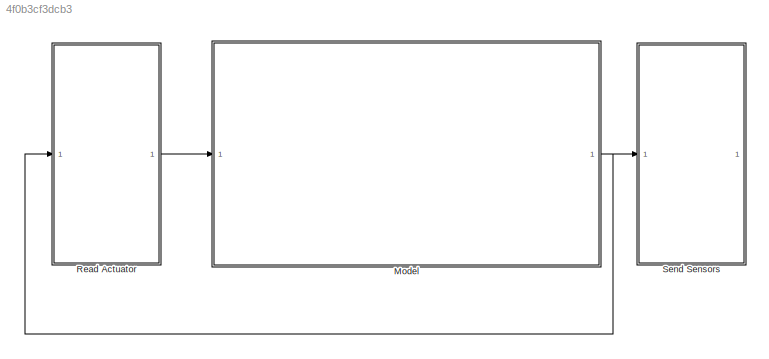
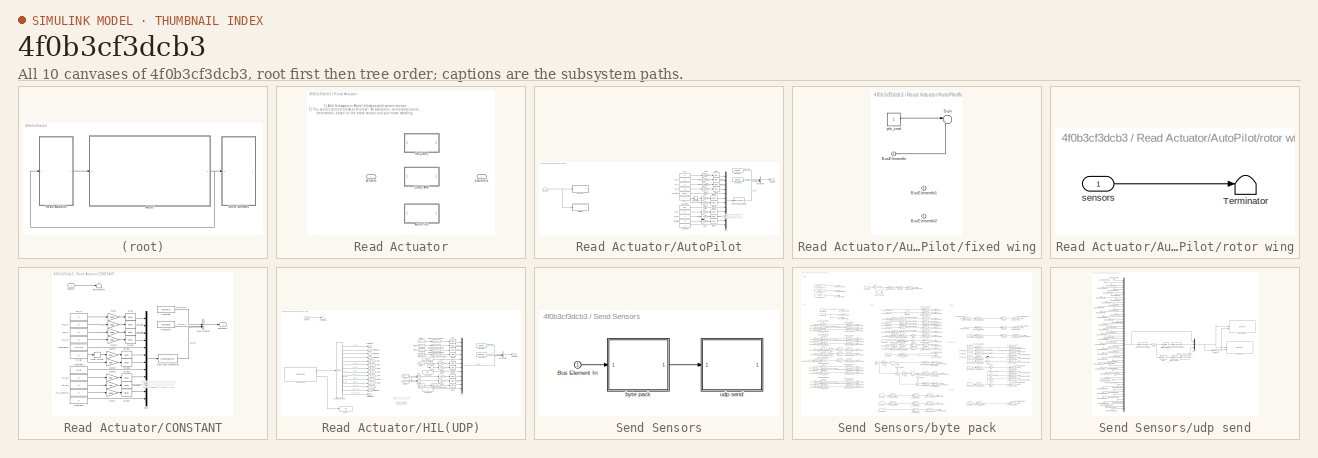
[diagram: thumbnail index - all 10 canvases of the model, root first then tree order]
MODEL slx_4f0b3cf3dcb3
KIND model
CONFIG AbsTol = auto
CONFIG EnableMultiTasking = off
CONFIG FixedStep = 5/1000
CONFIG MaxStep = auto
CONFIG MinStep = auto
CONFIG RelTol = 1e-3
CONFIG SampleTimeConstraint = Unconstrained
CONFIG SolverName = FixedStepAuto
CONFIG StartTime = 0.0
CONFIG StopTime = inf
BLOCK [ModelReference] Model
  ModelNameDialog = vtol50kg_airframe.slx
  ModelReferenceVersion = 5.221
BLOCK [SubSystem] Read Actuator
  LabelModeActiveChoice = AutoPilot
  Variant = on
  VariantControlMode = label
BLOCK [SubSystem] Read Actuator/AutoPilot
  VariantControl = AutoPilot
BLOCK [Bias] Read Actuator/AutoPilot/Bias
  Bias = 1000
  SaturateOnIntegerOverflow = off
BLOCK [Bias] Read Actuator/AutoPilot/Bias1
  Bias = 1000
  SaturateOnIntegerOverflow = off
BLOCK [Bias] Read Actuator/AutoPilot/Bias2
  Bias = 1000
  SaturateOnIntegerOverflow = off
BLOCK [Bias] Read Actuator/AutoPilot/Bias3
  Bias = 1000
  SaturateOnIntegerOverflow = off
BLOCK [Bias] Read Actuator/AutoPilot/Bias4
  Bias = 1500
  SaturateOnIntegerOverflow = off
BLOCK [Bias] Read Actuator/AutoPilot/Bias5
  Bias = 1500
  SaturateOnIntegerOverflow = off
BLOCK [Bias] Read Actuator/AutoPilot/Bias6
  Bias = 1500
  SaturateOnIntegerOverflow = off
BLOCK [Bias] Read Actuator/AutoPilot/Bias7
  Bias = 1000
  SaturateOnIntegerOverflow = off
BLOCK [Bias] Read Actuator/AutoPilot/Bias8
  Bias = 1500
  SaturateOnIntegerOverflow = off
BLOCK [BusCreator] Read Actuator/AutoPilot/Bus Creator
  DisplayOption = bar
  InheritFromInputs = on
  Inputs = 3
BLOCK [Constant] Read Actuator/AutoPilot/Constant
  Value = uint64(0)
BLOCK [Constant] Read Actuator/AutoPilot/Constant1
  Value = uint32(8)
BLOCK [Constant] Read Actuator/AutoPilot/Constant2
  Value = [0 0 0 0]
BLOCK [Constant] Read Actuator/AutoPilot/Constant3
  Value = [0 0]
BLOCK [Constant] Read Actuator/AutoPilot/Constant4
  Value = 0
BLOCK [DataTypeConversion] Read Actuator/AutoPilot/Data Type Conversion
  OutDataTypeStr = single
  RndMeth = Floor
  SaturateOnIntegerOverflow = off
BLOCK [Gain] Read Actuator/AutoPilot/Gain
  Gain = 1000
BLOCK [Gain] Read Actuator/AutoPilot/Gain1
  Gain = 1000
BLOCK [Gain] Read Actuator/AutoPilot/Gain2
  Gain = 1000
BLOCK [Gain] Read Actuator/AutoPilot/Gain3
  Gain = 1000
BLOCK [Gain] Read Actuator/AutoPilot/Gain4
  Gain = 500
BLOCK [Gain] Read Actuator/AutoPilot/Gain5
  Gain = 500
BLOCK [Gain] Read Actuator/AutoPilot/Gain6
  Gain = 500
BLOCK [Gain] Read Actuator/AutoPilot/Gain7
  Gain = 1000
BLOCK [Gain] Read Actuator/AutoPilot/Gain8
  Gain = 500
BLOCK [Mux] Read Actuator/AutoPilot/Mux
  DisplayOption = bar
  Inputs = 12
BLOCK [UnaryMinus] Read Actuator/AutoPilot/Unary Minus
BLOCK [Outport] Read Actuator/AutoPilot/actuators
BLOCK [SubSystem] Read Actuator/AutoPilot/fixed wing
BLOCK [Inport] Read Actuator/AutoPilot/fixed wing/BusElementIn
BLOCK [Inport] Read Actuator/AutoPilot/fixed wing/BusElementIn1
BLOCK [Inport] Read Actuator/AutoPilot/fixed wing/BusElementIn2
BLOCK [Sum] Read Actuator/AutoPilot/fixed wing/Sum
  Inputs = |+-
BLOCK [Constant] Read Actuator/AutoPilot/fixed wing/phi_cmd
BLOCK [Constant] Read Actuator/AutoPilot/fw_da
  NameLocation = left
  Value = 0
BLOCK [Constant] Read Actuator/AutoPilot/fw_dlr
  NameLocation = left
  Value = 0
BLOCK [Constant] Read Actuator/AutoPilot/fw_drr
  NameLocation = left
  Value = 0
BLOCK [Constant] Read Actuator/AutoPilot/fw_throttle
  NameLocation = left
  Value = 0
BLOCK [Constant] Read Actuator/AutoPilot/mc_lb
  NameLocation = left
  Value = 0
BLOCK [Constant] Read Actuator/AutoPilot/mc_lf
  NameLocation = left
  Value = 0
BLOCK [Constant] Read Actuator/AutoPilot/mc_rb
  NameLocation = left
  Value = 0
BLOCK [Constant] Read Actuator/AutoPilot/mc_rf
  NameLocation = left
  Value = 0
BLOCK [SubSystem] Read Actuator/AutoPilot/rotor wing
BLOCK [Terminator] Read Actuator/AutoPilot/rotor wing/Terminator
BLOCK [Inport] Read Actuator/AutoPilot/rotor wing/sensors
BLOCK [Inport] Read Actuator/AutoPilot/sensors
  OutDataTypeStr = Bus: sensor_together_s
BLOCK [SubSystem] Read Actuator/CONSTANT
  VariantControl = CONSTANT
BLOCK [Bias] Read Actuator/CONSTANT/Bias
  Bias = 1000
  SaturateOnIntegerOverflow = off
BLOCK [Bias] Read Actuator/CONSTANT/Bias1
  Bias = 1000
  SaturateOnIntegerOverflow = off
BLOCK [Bias] Read Actuator/CONSTANT/Bias2
  Bias = 1000
  SaturateOnIntegerOverflow = off
BLOCK [Bias] Read Actuator/CONSTANT/Bias3
  Bias = 1000
  SaturateOnIntegerOverflow = off
BLOCK [Bias] Read Actuator/CONSTANT/Bias4
  Bias = 1500
  SaturateOnIntegerOverflow = off
BLOCK [Bias] Read Actuator/CONSTANT/Bias5
  Bias = 1500
  SaturateOnIntegerOverflow = off
BLOCK [Bias] Read Actuator/CONSTANT/Bias6
  Bias = 1500
  SaturateOnIntegerOverflow = off
BLOCK [Bias] Read Actuator/CONSTANT/Bias7
  Bias = 1000
  SaturateOnIntegerOverflow = off
BLOCK [Bias] Read Actuator/CONSTANT/Bias8
  Bias = 1500
  SaturateOnIntegerOverflow = off
BLOCK [BusCreator] Read Actuator/CONSTANT/Bus Creator
  DisplayOption = bar
  InheritFromInputs = on
  Inputs = 3
BLOCK [Constant] Read Actuator/CONSTANT/Constant
  Value = uint64(0)
BLOCK [Constant] Read Actuator/CONSTANT/Constant1
  Value = uint32(8)
BLOCK [Constant] Read Actuator/CONSTANT/Constant2
  Value = [0 0 0 0]
BLOCK [Constant] Read Actuator/CONSTANT/Constant3
  Value = [0 0]
BLOCK [Constant] Read Actuator/CONSTANT/Constant4
  Value = 0
BLOCK [DataTypeConversion] Read Actuator/CONSTANT/Data Type Conversion
  OutDataTypeStr = single
  RndMeth = Floor
  SaturateOnIntegerOverflow = off
BLOCK [Gain] Read Actuator/CONSTANT/Gain
  Gain = 1000
BLOCK [Gain] Read Actuator/CONSTANT/Gain1
  Gain = 1000
BLOCK [Gain] Read Actuator/CONSTANT/Gain2
  Gain = 1000
BLOCK [Gain] Read Actuator/CONSTANT/Gain3
  Gain = 1000
BLOCK [Gain] Read Actuator/CONSTANT/Gain4
  Gain = 500
BLOCK [Gain] Read Actuator/CONSTANT/Gain5
  Gain = 500
BLOCK [Gain] Read Actuator/CONSTANT/Gain6
  Gain = 500
BLOCK [Gain] Read Actuator/CONSTANT/Gain7
  Gain = 1000
BLOCK [Gain] Read Actuator/CONSTANT/Gain8
  Gain = 500
BLOCK [Mux] Read Actuator/CONSTANT/Mux
  DisplayOption = bar
  Inputs = 12
BLOCK [Terminator] Read Actuator/CONSTANT/Terminator6
BLOCK [UnaryMinus] Read Actuator/CONSTANT/Unary Minus
BLOCK [Outport] Read Actuator/CONSTANT/actuators
BLOCK [Constant] Read Actuator/CONSTANT/fw_da
  NameLocation = left
  Value = 0
BLOCK [Constant] Read Actuator/CONSTANT/fw_dlr
  NameLocation = left
  Value = 0
BLOCK [Constant] Read Actuator/CONSTANT/fw_drr
  NameLocation = left
  Value = 0
BLOCK [Constant] Read Actuator/CONSTANT/fw_throttle
  NameLocation = left
  Value = 0
BLOCK [Constant] Read Actuator/CONSTANT/mc_lb
  NameLocation = left
  Value = 0
BLOCK [Constant] Read Actuator/CONSTANT/mc_lf
  NameLocation = left
  Value = 0
BLOCK [Constant] Read Actuator/CONSTANT/mc_rb
  NameLocation = left
  Value = 0
BLOCK [Constant] Read Actuator/CONSTANT/mc_rf
  NameLocation = left
  Value = 0
BLOCK [Inport] Read Actuator/CONSTANT/sensors
BLOCK [SubSystem] Read Actuator/HIL(UDP)
  VariantControl = HIL(UDP)
BLOCK [Bias] Read Actuator/HIL(UDP)/Bias
  Bias = 1000
  SaturateOnIntegerOverflow = off
BLOCK [Bias] Read Actuator/HIL(UDP)/Bias1
  Bias = 1000
  SaturateOnIntegerOverflow = off
BLOCK [Bias] Read Actuator/HIL(UDP)/Bias2
  Bias = 1000
  SaturateOnIntegerOverflow = off
BLOCK [Bias] Read Actuator/HIL(UDP)/Bias3
  Bias = 1000
  SaturateOnIntegerOverflow = off
BLOCK [Bias] Read Actuator/HIL(UDP)/Bias4
  Bias = 1500
  SaturateOnIntegerOverflow = off
BLOCK [Bias] Read Actuator/HIL(UDP)/Bias5
  Bias = 1500
  SaturateOnIntegerOverflow = off
BLOCK [Bias] Read Actuator/HIL(UDP)/Bias6
  Bias = 1500
  SaturateOnIntegerOverflow = off
BLOCK [Bias] Read Actuator/HIL(UDP)/Bias7
  Bias = 1000
  SaturateOnIntegerOverflow = off
BLOCK [Bias] Read Actuator/HIL(UDP)/Bias8
  Bias = 1500
  SaturateOnIntegerOverflow = off
BLOCK [BusCreator] Read Actuator/HIL(UDP)/Bus Creator
  DisplayOption = bar
  InheritFromInputs = on
  Inputs = 3
BLOCK [Reference] Read Actuator/HIL(UDP)/Byte Unpacking  REF=slrealtimeutilitieslib/Byte Unpacking
  SourceBlock = slrealtimeutilitieslib/Byte Unpacking
  SourceType = slreraltimebytepacking
BLOCK [Constant] Read Actuator/HIL(UDP)/Constant
  Value = uint64(0)
BLOCK [Constant] Read Actuator/HIL(UDP)/Constant1
  Value = uint32(16)
BLOCK [Constant] Read Actuator/HIL(UDP)/Constant2
  OutDataTypeStr = single
  Value = [0 0 0 0]
BLOCK [Constant] Read Actuator/HIL(UDP)/Constant3
  OutDataTypeStr = single
  Value = [0 0]
BLOCK [Constant] Read Actuator/HIL(UDP)/Constant4
  OutDataTypeStr = single
  Value = 0
BLOCK [DataTypeConversion] Read Actuator/HIL(UDP)/Data Type Conversion1
  OutDataTypeStr = single
  RndMeth = Floor
  SaturateOnIntegerOverflow = off
BLOCK [DataTypeConversion] Read Actuator/HIL(UDP)/Data Type Conversion2
  OutDataTypeStr = single
  RndMeth = Floor
  SaturateOnIntegerOverflow = off
BLOCK [DataTypeConversion] Read Actuator/HIL(UDP)/Data Type Conversion3
  OutDataTypeStr = single
  RndMeth = Floor
  SaturateOnIntegerOverflow = off
BLOCK [DataTypeConversion] Read Actuator/HIL(UDP)/Data Type Conversion4
  OutDataTypeStr = single
  RndMeth = Floor
  SaturateOnIntegerOverflow = off
BLOCK [DataTypeConversion] Read Actuator/HIL(UDP)/Data Type Conversion5
  OutDataTypeStr = single
  RndMeth = Floor
  SaturateOnIntegerOverflow = off
BLOCK [Display] Read Actuator/HIL(UDP)/Display
  Decimation = 1
BLOCK [From] Read Actuator/HIL(UDP)/From
  GotoTag = fw_da
BLOCK [From] Read Actuator/HIL(UDP)/From1
  GotoTag = mc_lf
BLOCK [From] Read Actuator/HIL(UDP)/From2
  GotoTag = mc_rf
BLOCK [From] Read Actuator/HIL(UDP)/From3
  GotoTag = mc_lb
BLOCK [From] Read Actuator/HIL(UDP)/From4
  GotoTag = mc_rb
BLOCK [From] Read Actuator/HIL(UDP)/From5
  GotoTag = fw_dt
BLOCK [From] Read Actuator/HIL(UDP)/From6
  GotoTag = fw_de
BLOCK [From] Read Actuator/HIL(UDP)/From7
  GotoTag = fw_dr
BLOCK [Gain] Read Actuator/HIL(UDP)/Gain4
  Gain = 0.5
  OutDataTypeStr = single
BLOCK [Gain] Read Actuator/HIL(UDP)/Gain5
  Gain = 0.5
  OutDataTypeStr = single
BLOCK [Gain] Read Actuator/HIL(UDP)/Gain6
  Gain = 0.5
  OutDataTypeStr = single
BLOCK [Gain] Read Actuator/HIL(UDP)/Gain8
  Gain = 0.5
  OutDataTypeStr = single
BLOCK [Goto] Read Actuator/HIL(UDP)/Goto
  GotoTag = fw_da
BLOCK [Goto] Read Actuator/HIL(UDP)/Goto1
  GotoTag = fw_dr
BLOCK [Goto] Read Actuator/HIL(UDP)/Goto2
  GotoTag = fw_de
BLOCK [Goto] Read Actuator/HIL(UDP)/Goto3
  GotoTag = fw_dt
BLOCK [Goto] Read Actuator/HIL(UDP)/Goto4
  GotoTag = mc_lf
BLOCK [Goto] Read Actuator/HIL(UDP)/Goto5
  GotoTag = mc_rf
BLOCK [Goto] Read Actuator/HIL(UDP)/Goto6
  GotoTag = mc_lb
BLOCK [Goto] Read Actuator/HIL(UDP)/Goto7
  GotoTag = mc_rb
BLOCK [Mux] Read Actuator/HIL(UDP)/Mux
  DisplayOption = bar
  Inputs = 12
BLOCK [Sum] Read Actuator/HIL(UDP)/Sum
  IconShape = rectangular
  Inputs = +-
BLOCK [Sum] Read Actuator/HIL(UDP)/Sum1
  IconShape = rectangular
  Inputs = --
BLOCK [Terminator] Read Actuator/HIL(UDP)/Terminator
BLOCK [Terminator] Read Actuator/HIL(UDP)/Terminator1
BLOCK [Terminator] Read Actuator/HIL(UDP)/Terminator2
BLOCK [Terminator] Read Actuator/HIL(UDP)/Terminator3
BLOCK [Terminator] Read Actuator/HIL(UDP)/Terminator4
BLOCK [Terminator] Read Actuator/HIL(UDP)/Terminator5
BLOCK [Terminator] Read Actuator/HIL(UDP)/Terminator6
BLOCK [Reference] Read Actuator/HIL(UDP)/UDP Receive  REF=slrealtimeiplib/UDP Receive
  SourceBlock = slrealtimeiplib/UDP Receive
  SourceType = slrealtimeudpreceive
BLOCK [UnaryMinus] Read Actuator/HIL(UDP)/Unary Minus
BLOCK [Outport] Read Actuator/HIL(UDP)/actuators
BLOCK [Inport] Read Actuator/HIL(UDP)/sensors
BLOCK [Outport] Read Actuator/actuators
BLOCK [Inport] Read Actuator/sensors
BLOCK [SubSystem] Send Sensors
BLOCK [Inport] Send Sensors/Bus Element In
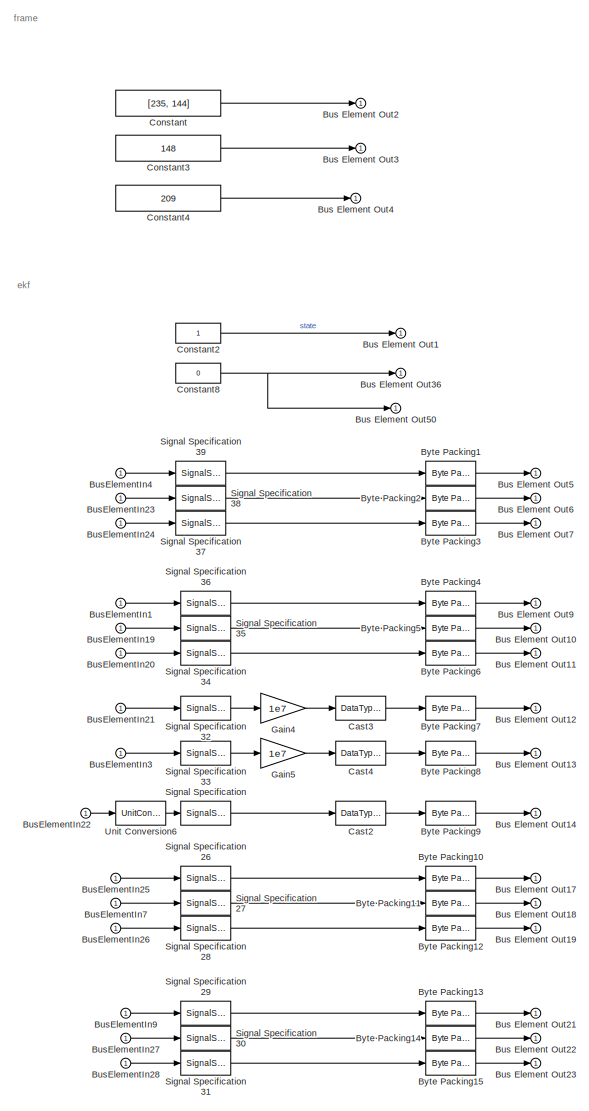
[diagram: Send Sensors/byte pack - part 1/3, left side, full height]
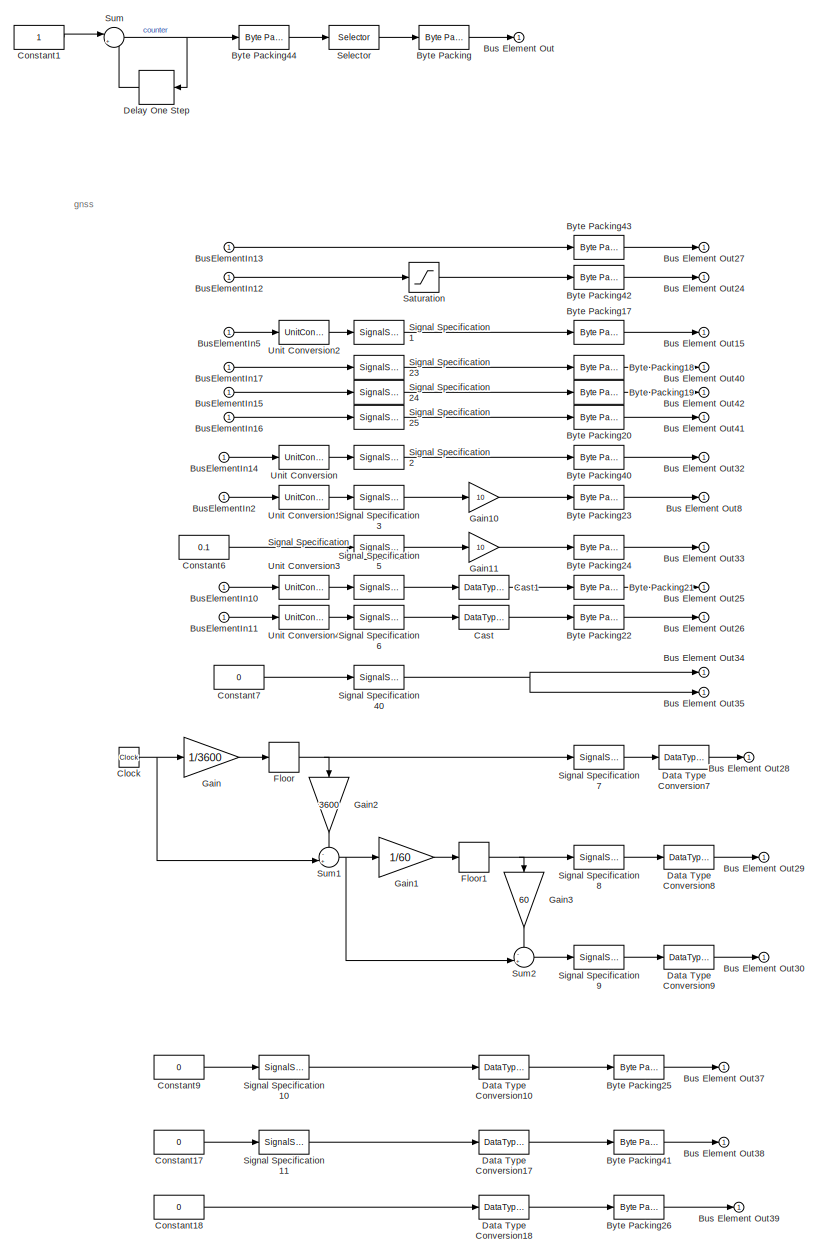
[diagram: Send Sensors/byte pack - part 2/3, center side, full height]
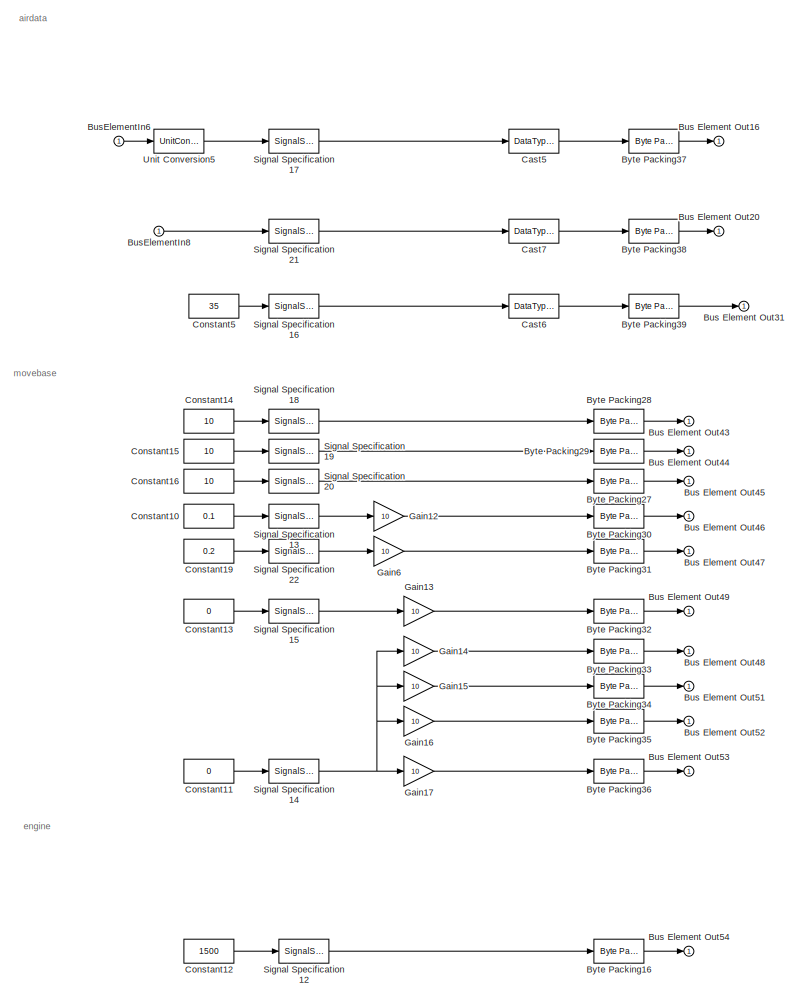
[diagram: Send Sensors/byte pack - part 3/3, right side, full height]
BLOCK [SubSystem] Send Sensors/byte pack
BLOCK [Outport] Send Sensors/byte pack/Bus Element Out
BLOCK [Outport] Send Sensors/byte pack/Bus Element Out1
BLOCK [Outport] Send Sensors/byte pack/Bus Element Out10
BLOCK [Outport] Send Sensors/byte pack/Bus Element Out11
BLOCK [Outport] Send Sensors/byte pack/Bus Element Out12
BLOCK [Outport] Send Sensors/byte pack/Bus Element Out13
BLOCK [Outport] Send Sensors/byte pack/Bus Element Out14
BLOCK [Outport] Send Sensors/byte pack/Bus Element Out15
BLOCK [Outport] Send Sensors/byte pack/Bus Element Out16
BLOCK [Outport] Send Sensors/byte pack/Bus Element Out17
BLOCK [Outport] Send Sensors/byte pack/Bus Element Out18
BLOCK [Outport] Send Sensors/byte pack/Bus Element Out19
BLOCK [Outport] Send Sensors/byte pack/Bus Element Out2
BLOCK [Outport] Send Sensors/byte pack/Bus Element Out20
BLOCK [Outport] Send Sensors/byte pack/Bus Element Out21
BLOCK [Outport] Send Sensors/byte pack/Bus Element Out22
BLOCK [Outport] Send Sensors/byte pack/Bus Element Out23
BLOCK [Outport] Send Sensors/byte pack/Bus Element Out24
BLOCK [Outport] Send Sensors/byte pack/Bus Element Out25
BLOCK [Outport] Send Sensors/byte pack/Bus Element Out26
BLOCK [Outport] Send Sensors/byte pack/Bus Element Out27
BLOCK [Outport] Send Sensors/byte pack/Bus Element Out28
BLOCK [Outport] Send Sensors/byte pack/Bus Element Out29
BLOCK [Outport] Send Sensors/byte pack/Bus Element Out3
BLOCK [Outport] Send Sensors/byte pack/Bus Element Out30
BLOCK [Outport] Send Sensors/byte pack/Bus Element Out31
BLOCK [Outport] Send Sensors/byte pack/Bus Element Out32
BLOCK [Outport] Send Sensors/byte pack/Bus Element Out33
BLOCK [Outport] Send Sensors/byte pack/Bus Element Out34
BLOCK [Outport] Send Sensors/byte pack/Bus Element Out35
BLOCK [Outport] Send Sensors/byte pack/Bus Element Out36
BLOCK [Outport] Send Sensors/byte pack/Bus Element Out37
BLOCK [Outport] Send Sensors/byte pack/Bus Element Out38
BLOCK [Outport] Send Sensors/byte pack/Bus Element Out39
BLOCK [Outport] Send Sensors/byte pack/Bus Element Out4
BLOCK [Outport] Send Sensors/byte pack/Bus Element Out40
BLOCK [Outport] Send Sensors/byte pack/Bus Element Out41
BLOCK [Outport] Send Sensors/byte pack/Bus Element Out42
BLOCK [Outport] Send Sensors/byte pack/Bus Element Out43
BLOCK [Outport] Send Sensors/byte pack/Bus Element Out44
BLOCK [Outport] Send Sensors/byte pack/Bus Element Out45
BLOCK [Outport] Send Sensors/byte pack/Bus Element Out46
BLOCK [Outport] Send Sensors/byte pack/Bus Element Out47
BLOCK [Outport] Send Sensors/byte pack/Bus Element Out48
BLOCK [Outport] Send Sensors/byte pack/Bus Element Out49
BLOCK [Outport] Send Sensors/byte pack/Bus Element Out5
BLOCK [Outport] Send Sensors/byte pack/Bus Element Out50
BLOCK [Outport] Send Sensors/byte pack/Bus Element Out51
BLOCK [Outport] Send Sensors/byte pack/Bus Element Out52
BLOCK [Outport] Send Sensors/byte pack/Bus Element Out53
BLOCK [Outport] Send Sensors/byte pack/Bus Element Out54
BLOCK [Outport] Send Sensors/byte pack/Bus Element Out6
BLOCK [Outport] Send Sensors/byte pack/Bus Element Out7
BLOCK [Outport] Send Sensors/byte pack/Bus Element Out8
BLOCK [Outport] Send Sensors/byte pack/Bus Element Out9
BLOCK [Inport] Send Sensors/byte pack/BusElementIn1
BLOCK [Inport] Send Sensors/byte pack/BusElementIn10
BLOCK [Inport] Send Sensors/byte pack/BusElementIn11
BLOCK [Inport] Send Sensors/byte pack/BusElementIn12
BLOCK [Inport] Send Sensors/byte pack/BusElementIn13
BLOCK [Inport] Send Sensors/byte pack/BusElementIn14
BLOCK [Inport] Send Sensors/byte pack/BusElementIn15
BLOCK [Inport] Send Sensors/byte pack/BusElementIn16
BLOCK [Inport] Send Sensors/byte pack/BusElementIn17
BLOCK [Inport] Send Sensors/byte pack/BusElementIn19
BLOCK [Inport] Send Sensors/byte pack/BusElementIn2
BLOCK [Inport] Send Sensors/byte pack/BusElementIn20
BLOCK [Inport] Send Sensors/byte pack/BusElementIn21
BLOCK [Inport] Send Sensors/byte pack/BusElementIn22
BLOCK [Inport] Send Sensors/byte pack/BusElementIn23
BLOCK [Inport] Send Sensors/byte pack/BusElementIn24
BLOCK [Inport] Send Sensors/byte pack/BusElementIn25
BLOCK [Inport] Send Sensors/byte pack/BusElementIn26
BLOCK [Inport] Send Sensors/byte pack/BusElementIn27
BLOCK [Inport] Send Sensors/byte pack/BusElementIn28
BLOCK [Inport] Send Sensors/byte pack/BusElementIn3
BLOCK [Inport] Send Sensors/byte pack/BusElementIn4
BLOCK [Inport] Send Sensors/byte pack/BusElementIn5
BLOCK [Inport] Send Sensors/byte pack/BusElementIn6
BLOCK [Inport] Send Sensors/byte pack/BusElementIn7
BLOCK [Inport] Send Sensors/byte pack/BusElementIn8
BLOCK [Inport] Send Sensors/byte pack/BusElementIn9
BLOCK [Reference] Send Sensors/byte pack/Byte Packing  REF=slrealtimeutilitieslib/Byte Packing
  SourceBlock = slrealtimeutilitieslib/Byte Packing
  SourceType = slrealtimebytepacking
BLOCK [Reference] Send Sensors/byte pack/Byte Packing1  REF=slrealtimeutilitieslib/Byte Packing
  SourceBlock = slrealtimeutilitieslib/Byte Packing
  SourceType = slrealtimebytepacking
BLOCK [Reference] Send Sensors/byte pack/Byte Packing10  REF=slrealtimeutilitieslib/Byte Packing
  SourceBlock = slrealtimeutilitieslib/Byte Packing
  SourceType = slrealtimebytepacking
BLOCK [Reference] Send Sensors/byte pack/Byte Packing11  REF=slrealtimeutilitieslib/Byte Packing
  SourceBlock = slrealtimeutilitieslib/Byte Packing
  SourceType = slrealtimebytepacking
BLOCK [Reference] Send Sensors/byte pack/Byte Packing12  REF=slrealtimeutilitieslib/Byte Packing
  SourceBlock = slrealtimeutilitieslib/Byte Packing
  SourceType = slrealtimebytepacking
BLOCK [Reference] Send Sensors/byte pack/Byte Packing13  REF=slrealtimeutilitieslib/Byte Packing
  SourceBlock = slrealtimeutilitieslib/Byte Packing
  SourceType = slrealtimebytepacking
BLOCK [Reference] Send Sensors/byte pack/Byte Packing14  REF=slrealtimeutilitieslib/Byte Packing
  SourceBlock = slrealtimeutilitieslib/Byte Packing
  SourceType = slrealtimebytepacking
BLOCK [Reference] Send Sensors/byte pack/Byte Packing15  REF=slrealtimeutilitieslib/Byte Packing
  SourceBlock = slrealtimeutilitieslib/Byte Packing
  SourceType = slrealtimebytepacking
BLOCK [Reference] Send Sensors/byte pack/Byte Packing16  REF=slrealtimeutilitieslib/Byte Packing
  SourceBlock = slrealtimeutilitieslib/Byte Packing
  SourceType = slrealtimebytepacking
BLOCK [Reference] Send Sensors/byte pack/Byte Packing17  REF=slrealtimeutilitieslib/Byte Packing
  SourceBlock = slrealtimeutilitieslib/Byte Packing
  SourceType = slrealtimebytepacking
BLOCK [Reference] Send Sensors/byte pack/Byte Packing18  REF=slrealtimeutilitieslib/Byte Packing
  SourceBlock = slrealtimeutilitieslib/Byte Packing
  SourceType = slrealtimebytepacking
BLOCK [Reference] Send Sensors/byte pack/Byte Packing19  REF=slrealtimeutilitieslib/Byte Packing
  SourceBlock = slrealtimeutilitieslib/Byte Packing
  SourceType = slrealtimebytepacking
BLOCK [Reference] Send Sensors/byte pack/Byte Packing2  REF=slrealtimeutilitieslib/Byte Packing
  SourceBlock = slrealtimeutilitieslib/Byte Packing
  SourceType = slrealtimebytepacking
BLOCK [Reference] Send Sensors/byte pack/Byte Packing20  REF=slrealtimeutilitieslib/Byte Packing
  SourceBlock = slrealtimeutilitieslib/Byte Packing
  SourceType = slrealtimebytepacking
BLOCK [Reference] Send Sensors/byte pack/Byte Packing21  REF=slrealtimeutilitieslib/Byte Packing
  SourceBlock = slrealtimeutilitieslib/Byte Packing
  SourceType = slrealtimebytepacking
BLOCK [Reference] Send Sensors/byte pack/Byte Packing22  REF=slrealtimeutilitieslib/Byte Packing
  SourceBlock = slrealtimeutilitieslib/Byte Packing
  SourceType = slrealtimebytepacking
BLOCK [Reference] Send Sensors/byte pack/Byte Packing23  REF=slrealtimeutilitieslib/Byte Packing
  SourceBlock = slrealtimeutilitieslib/Byte Packing
  SourceType = slrealtimebytepacking
BLOCK [Reference] Send Sensors/byte pack/Byte Packing24  REF=slrealtimeutilitieslib/Byte Packing
  SourceBlock = slrealtimeutilitieslib/Byte Packing
  SourceType = slrealtimebytepacking
BLOCK [Reference] Send Sensors/byte pack/Byte Packing25  REF=slrealtimeutilitieslib/Byte Packing
  SourceBlock = slrealtimeutilitieslib/Byte Packing
  SourceType = slrealtimebytepacking
BLOCK [Reference] Send Sensors/byte pack/Byte Packing26  REF=slrealtimeutilitieslib/Byte Packing
  SourceBlock = slrealtimeutilitieslib/Byte Packing
  SourceType = slrealtimebytepacking
BLOCK [Reference] Send Sensors/byte pack/Byte Packing27  REF=slrealtimeutilitieslib/Byte Packing
  SourceBlock = slrealtimeutilitieslib/Byte Packing
  SourceType = slrealtimebytepacking
BLOCK [Reference] Send Sensors/byte pack/Byte Packing28  REF=slrealtimeutilitieslib/Byte Packing
  SourceBlock = slrealtimeutilitieslib/Byte Packing
  SourceType = slrealtimebytepacking
BLOCK [Reference] Send Sensors/byte pack/Byte Packing29  REF=slrealtimeutilitieslib/Byte Packing
  SourceBlock = slrealtimeutilitieslib/Byte Packing
  SourceType = slrealtimebytepacking
BLOCK [Reference] Send Sensors/byte pack/Byte Packing3  REF=slrealtimeutilitieslib/Byte Packing
  SourceBlock = slrealtimeutilitieslib/Byte Packing
  SourceType = slrealtimebytepacking
BLOCK [Reference] Send Sensors/byte pack/Byte Packing30  REF=slrealtimeutilitieslib/Byte Packing
  SourceBlock = slrealtimeutilitieslib/Byte Packing
  SourceType = slrealtimebytepacking
BLOCK [Reference] Send Sensors/byte pack/Byte Packing31  REF=slrealtimeutilitieslib/Byte Packing
  SourceBlock = slrealtimeutilitieslib/Byte Packing
  SourceType = slrealtimebytepacking
BLOCK [Reference] Send Sensors/byte pack/Byte Packing32  REF=slrealtimeutilitieslib/Byte Packing
  SourceBlock = slrealtimeutilitieslib/Byte Packing
  SourceType = slrealtimebytepacking
BLOCK [Reference] Send Sensors/byte pack/Byte Packing33  REF=slrealtimeutilitieslib/Byte Packing
  SourceBlock = slrealtimeutilitieslib/Byte Packing
  SourceType = slrealtimebytepacking
BLOCK [Reference] Send Sensors/byte pack/Byte Packing34  REF=slrealtimeutilitieslib/Byte Packing
  SourceBlock = slrealtimeutilitieslib/Byte Packing
  SourceType = slrealtimebytepacking
BLOCK [Reference] Send Sensors/byte pack/Byte Packing35  REF=slrealtimeutilitieslib/Byte Packing
  SourceBlock = slrealtimeutilitieslib/Byte Packing
  SourceType = slrealtimebytepacking
BLOCK [Reference] Send Sensors/byte pack/Byte Packing36  REF=slrealtimeutilitieslib/Byte Packing
  SourceBlock = slrealtimeutilitieslib/Byte Packing
  SourceType = slrealtimebytepacking
BLOCK [Reference] Send Sensors/byte pack/Byte Packing37  REF=slrealtimeutilitieslib/Byte Packing
  SourceBlock = slrealtimeutilitieslib/Byte Packing
  SourceType = slrealtimebytepacking
BLOCK [Reference] Send Sensors/byte pack/Byte Packing38  REF=slrealtimeutilitieslib/Byte Packing
  SourceBlock = slrealtimeutilitieslib/Byte Packing
  SourceType = slrealtimebytepacking
BLOCK [Reference] Send Sensors/byte pack/Byte Packing39  REF=slrealtimeutilitieslib/Byte Packing
  SourceBlock = slrealtimeutilitieslib/Byte Packing
  SourceType = slrealtimebytepacking
BLOCK [Reference] Send Sensors/byte pack/Byte Packing4  REF=slrealtimeutilitieslib/Byte Packing
  SourceBlock = slrealtimeutilitieslib/Byte Packing
  SourceType = slrealtimebytepacking
BLOCK [Reference] Send Sensors/byte pack/Byte Packing40  REF=slrealtimeutilitieslib/Byte Packing
  SourceBlock = slrealtimeutilitieslib/Byte Packing
  SourceType = slrealtimebytepacking
BLOCK [Reference] Send Sensors/byte pack/Byte Packing41  REF=slrealtimeutilitieslib/Byte Packing
  SourceBlock = slrealtimeutilitieslib/Byte Packing
  SourceType = slrealtimebytepacking
BLOCK [Reference] Send Sensors/byte pack/Byte Packing42  REF=slrealtimeutilitieslib/Byte Packing
  SourceBlock = slrealtimeutilitieslib/Byte Packing
  SourceType = slrealtimebytepacking
BLOCK [Reference] Send Sensors/byte pack/Byte Packing43  REF=slrealtimeutilitieslib/Byte Packing
  SourceBlock = slrealtimeutilitieslib/Byte Packing
  SourceType = slrealtimebytepacking
BLOCK [Reference] Send Sensors/byte pack/Byte Packing44  REF=slrealtimeutilitieslib/Byte Packing
  SourceBlock = slrealtimeutilitieslib/Byte Packing
  SourceType = slrealtimebytepacking
BLOCK [Reference] Send Sensors/byte pack/Byte Packing5  REF=slrealtimeutilitieslib/Byte Packing
  SourceBlock = slrealtimeutilitieslib/Byte Packing
  SourceType = slrealtimebytepacking
BLOCK [Reference] Send Sensors/byte pack/Byte Packing6  REF=slrealtimeutilitieslib/Byte Packing
  SourceBlock = slrealtimeutilitieslib/Byte Packing
  SourceType = slrealtimebytepacking
BLOCK [Reference] Send Sensors/byte pack/Byte Packing7  REF=slrealtimeutilitieslib/Byte Packing
  SourceBlock = slrealtimeutilitieslib/Byte Packing
  SourceType = slrealtimebytepacking
BLOCK [Reference] Send Sensors/byte pack/Byte Packing8  REF=slrealtimeutilitieslib/Byte Packing
  SourceBlock = slrealtimeutilitieslib/Byte Packing
  SourceType = slrealtimebytepacking
BLOCK [Reference] Send Sensors/byte pack/Byte Packing9  REF=slrealtimeutilitieslib/Byte Packing
  SourceBlock = slrealtimeutilitieslib/Byte Packing
  SourceType = slrealtimebytepacking
BLOCK [DataTypeConversion] Send Sensors/byte pack/Cast
  RndMeth = Floor
  SaturateOnIntegerOverflow = off
BLOCK [DataTypeConversion] Send Sensors/byte pack/Cast1
  RndMeth = Floor
  SaturateOnIntegerOverflow = off
BLOCK [DataTypeConversion] Send Sensors/byte pack/Cast2
  RndMeth = Floor
  SaturateOnIntegerOverflow = off
BLOCK [DataTypeConversion] Send Sensors/byte pack/Cast3
  RndMeth = Floor
  SaturateOnIntegerOverflow = off
BLOCK [DataTypeConversion] Send Sensors/byte pack/Cast4
  RndMeth = Floor
  SaturateOnIntegerOverflow = off
BLOCK [DataTypeConversion] Send Sensors/byte pack/Cast5
  RndMeth = Floor
  SaturateOnIntegerOverflow = off
BLOCK [DataTypeConversion] Send Sensors/byte pack/Cast6
  RndMeth = Floor
  SaturateOnIntegerOverflow = off
BLOCK [DataTypeConversion] Send Sensors/byte pack/Cast7
  RndMeth = Floor
  SaturateOnIntegerOverflow = off
BLOCK [Clock] Send Sensors/byte pack/Clock
BLOCK [Constant] Send Sensors/byte pack/Constant
  OutDataTypeStr = uint8
  Value = [235, 144]
BLOCK [Constant] Send Sensors/byte pack/Constant1
  OutDataTypeStr = uint64
BLOCK [Constant] Send Sensors/byte pack/Constant10
  Value = 0.1
BLOCK [Constant] Send Sensors/byte pack/Constant11
  OutDataTypeStr = single
  Value = 0
BLOCK [Constant] Send Sensors/byte pack/Constant12
  OutDataTypeStr = uint16
  Value = 1500
BLOCK [Constant] Send Sensors/byte pack/Constant13
  OutDataTypeStr = single
  Value = 0
BLOCK [Constant] Send Sensors/byte pack/Constant14
  OutDataTypeStr = single
  Value = 10
BLOCK [Constant] Send Sensors/byte pack/Constant15
  OutDataTypeStr = single
  Value = 10
BLOCK [Constant] Send Sensors/byte pack/Constant16
  OutDataTypeStr = single
  Value = 10
BLOCK [Constant] Send Sensors/byte pack/Constant17
  Value = 0
BLOCK [Constant] Send Sensors/byte pack/Constant18
  Value = 0
BLOCK [Constant] Send Sensors/byte pack/Constant19
  Value = 0.2
BLOCK [Constant] Send Sensors/byte pack/Constant2
  OutDataTypeStr = uint8
BLOCK [Constant] Send Sensors/byte pack/Constant3
  OutDataTypeStr = uint8
  Value = 148
BLOCK [Constant] Send Sensors/byte pack/Constant4
  OutDataTypeStr = uint8
  Value = 209
BLOCK [Constant] Send Sensors/byte pack/Constant5
  OutDataTypeStr = int16
  Value = 35
BLOCK [Constant] Send Sensors/byte pack/Constant6
  Value = 0.1
BLOCK [Constant] Send Sensors/byte pack/Constant7
  OutDataTypeStr = uint8
  Value = 0
BLOCK [Constant] Send Sensors/byte pack/Constant8
  OutDataTypeStr = uint8
  Value = 0
BLOCK [Constant] Send Sensors/byte pack/Constant9
  Value = 0
BLOCK [DataTypeConversion] Send Sensors/byte pack/Data Type Conversion10
  RndMeth = Floor
  SaturateOnIntegerOverflow = off
BLOCK [DataTypeConversion] Send Sensors/byte pack/Data Type Conversion17
  RndMeth = Floor
  SaturateOnIntegerOverflow = off
BLOCK [DataTypeConversion] Send Sensors/byte pack/Data Type Conversion18
  RndMeth = Floor
  SaturateOnIntegerOverflow = off
BLOCK [DataTypeConversion] Send Sensors/byte pack/Data Type Conversion7
  OutDataTypeStr = uint8
  RndMeth = Floor
  SaturateOnIntegerOverflow = off
BLOCK [DataTypeConversion] Send Sensors/byte pack/Data Type Conversion8
  OutDataTypeStr = uint8
  RndMeth = Floor
  SaturateOnIntegerOverflow = off
BLOCK [DataTypeConversion] Send Sensors/byte pack/Data Type Conversion9
  OutDataTypeStr = uint8
  RndMeth = Floor
  SaturateOnIntegerOverflow = off
BLOCK [Delay] Send Sensors/byte pack/Delay One Step
  DelayLength = 1
  InputPortMap = u0
  NameLocation = top
BLOCK [Rounding] Send Sensors/byte pack/Floor
BLOCK [Rounding] Send Sensors/byte pack/Floor1
BLOCK [Gain] Send Sensors/byte pack/Gain
  Gain = 1/3600
BLOCK [Gain] Send Sensors/byte pack/Gain1
  Gain = 1/60
BLOCK [Gain] Send Sensors/byte pack/Gain10
  Gain = 10
  OutDataTypeStr = int16
BLOCK [Gain] Send Sensors/byte pack/Gain11
  Gain = 10
  OutDataTypeStr = int16
BLOCK [Gain] Send Sensors/byte pack/Gain12
  Gain = 10
  OutDataTypeStr = uint16
BLOCK [Gain] Send Sensors/byte pack/Gain13
  Gain = 10
  OutDataTypeStr = uint16
BLOCK [Gain] Send Sensors/byte pack/Gain14
  Gain = 10
  OutDataTypeStr = uint16
BLOCK [Gain] Send Sensors/byte pack/Gain15
  Gain = 10
  OutDataTypeStr = int16
BLOCK [Gain] Send Sensors/byte pack/Gain16
  Gain = 10
  OutDataTypeStr = int16
BLOCK [Gain] Send Sensors/byte pack/Gain17
  Gain = 10
  OutDataTypeStr = int16
BLOCK [Gain] Send Sensors/byte pack/Gain2
  Gain = 3600
  NameLocation = left
BLOCK [Gain] Send Sensors/byte pack/Gain3
  Gain = 60
  NameLocation = left
BLOCK [Gain] Send Sensors/byte pack/Gain4
  Gain = 1e7
BLOCK [Gain] Send Sensors/byte pack/Gain5
  Gain = 1e7
BLOCK [Gain] Send Sensors/byte pack/Gain6
  Gain = 10
  OutDataTypeStr = uint16
BLOCK [Saturate] Send Sensors/byte pack/Saturation
  LowerLimit = 0
  UpperLimit = 15
BLOCK [Selector] Send Sensors/byte pack/Selector
  IndexOptions = Index vector (dialog)
  Indices = 1
  InputPortWidth = 2
  OutputSizes = 1
BLOCK [SignalSpecification] Send Sensors/byte pack/Signal Specification
  Unit = cm
BLOCK [SignalSpecification] Send Sensors/byte pack/Signal Specification1
  Unit = cm
BLOCK [SignalSpecification] Send Sensors/byte pack/Signal Specification10
  Unit = ms
BLOCK [SignalSpecification] Send Sensors/byte pack/Signal Specification11
  Unit = d
BLOCK [SignalSpecification] Send Sensors/byte pack/Signal Specification12
  Unit = rpm
BLOCK [SignalSpecification] Send Sensors/byte pack/Signal Specification13
  Unit = m
BLOCK [SignalSpecification] Send Sensors/byte pack/Signal Specification14
  Unit = deg
BLOCK [SignalSpecification] Send Sensors/byte pack/Signal Specification15
  Unit = m/s
BLOCK [SignalSpecification] Send Sensors/byte pack/Signal Specification16
  Unit = °C
BLOCK [SignalSpecification] Send Sensors/byte pack/Signal Specification17
  Unit = cm
BLOCK [SignalSpecification] Send Sensors/byte pack/Signal Specification18
  Unit = m
BLOCK [SignalSpecification] Send Sensors/byte pack/Signal Specification19
  Unit = m
BLOCK [SignalSpecification] Send Sensors/byte pack/Signal Specification2
  Unit = deg
BLOCK [SignalSpecification] Send Sensors/byte pack/Signal Specification20
  Unit = m
BLOCK [SignalSpecification] Send Sensors/byte pack/Signal Specification21
  Unit = m/s
BLOCK [SignalSpecification] Send Sensors/byte pack/Signal Specification22
  Unit = m
BLOCK [SignalSpecification] Send Sensors/byte pack/Signal Specification23
  Unit = m/s
BLOCK [SignalSpecification] Send Sensors/byte pack/Signal Specification24
  Unit = m/s
BLOCK [SignalSpecification] Send Sensors/byte pack/Signal Specification25
  Unit = m/s
BLOCK [SignalSpecification] Send Sensors/byte pack/Signal Specification26
  Unit = m/s
BLOCK [SignalSpecification] Send Sensors/byte pack/Signal Specification27
  Unit = m/s
BLOCK [SignalSpecification] Send Sensors/byte pack/Signal Specification28
  Unit = m/s
BLOCK [SignalSpecification] Send Sensors/byte pack/Signal Specification29
  Unit = m/s^2
BLOCK [SignalSpecification] Send Sensors/byte pack/Signal Specification3
  Unit = deg
BLOCK [SignalSpecification] Send Sensors/byte pack/Signal Specification30
  Unit = m/s^2
BLOCK [SignalSpecification] Send Sensors/byte pack/Signal Specification31
  Unit = m/s^2
BLOCK [SignalSpecification] Send Sensors/byte pack/Signal Specification32
  Unit = deg
BLOCK [SignalSpecification] Send Sensors/byte pack/Signal Specification33
  Unit = deg
BLOCK [SignalSpecification] Send Sensors/byte pack/Signal Specification34
  Unit = rad/s
BLOCK [SignalSpecification] Send Sensors/byte pack/Signal Specification35
  Unit = rad/s
BLOCK [SignalSpecification] Send Sensors/byte pack/Signal Specification36
  Unit = rad/s
BLOCK [SignalSpecification] Send Sensors/byte pack/Signal Specification37
  Unit = rad
BLOCK [SignalSpecification] Send Sensors/byte pack/Signal Specification38
  Unit = rad
BLOCK [SignalSpecification] Send Sensors/byte pack/Signal Specification39
  Unit = rad
BLOCK [SignalSpecification] Send Sensors/byte pack/Signal Specification4
  Unit = deg
BLOCK [SignalSpecification] Send Sensors/byte pack/Signal Specification40
  Unit = s
BLOCK [SignalSpecification] Send Sensors/byte pack/Signal Specification5
  Unit = cm
BLOCK [SignalSpecification] Send Sensors/byte pack/Signal Specification6
  Unit = cm
BLOCK [SignalSpecification] Send Sensors/byte pack/Signal Specification7
  Unit = h
BLOCK [SignalSpecification] Send Sensors/byte pack/Signal Specification8
  Unit = min
BLOCK [SignalSpecification] Send Sensors/byte pack/Signal Specification9
  Unit = s
BLOCK [Sum] Send Sensors/byte pack/Sum
  Inputs = |++
BLOCK [Sum] Send Sensors/byte pack/Sum1
  Inputs = -+|
BLOCK [Sum] Send Sensors/byte pack/Sum2
  Inputs = -+|
BLOCK [UnitConversion] Send Sensors/byte pack/Unit Conversion
BLOCK [UnitConversion] Send Sensors/byte pack/Unit Conversion1
BLOCK [UnitConversion] Send Sensors/byte pack/Unit Conversion2
  OutputType = Inherit: Inherit via back propagation
BLOCK [UnitConversion] Send Sensors/byte pack/Unit Conversion3
BLOCK [UnitConversion] Send Sensors/byte pack/Unit Conversion4
BLOCK [UnitConversion] Send Sensors/byte pack/Unit Conversion5
BLOCK [UnitConversion] Send Sensors/byte pack/Unit Conversion6
  OutputType = Inherit: Inherit via back propagation
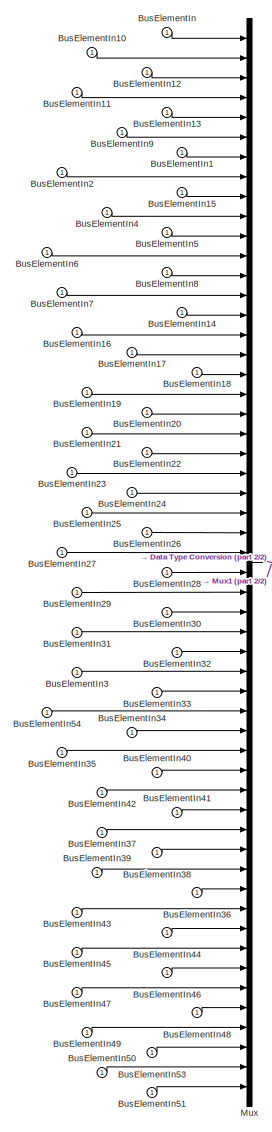
[diagram: Send Sensors/udp send - part 1/2, left side, full height]
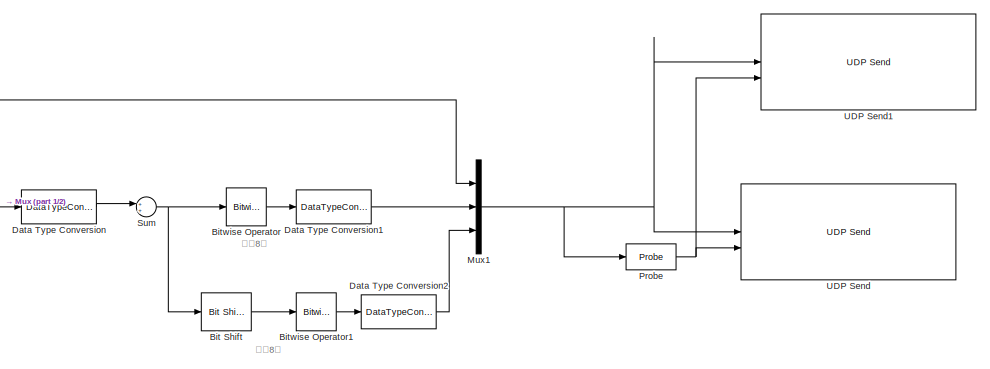
[diagram: Send Sensors/udp send - part 2/2, full width, middle band]
BLOCK [SubSystem] Send Sensors/udp send
BLOCK [Reference] Send Sensors/udp send/Bit Shift  REF=hdlsllib/Logic and Bit
Operations/Bit Shift
  SourceBlock = hdlsllib/Logic and Bit\nOperations/Bit Shift
  SourceType = Bit Shift
BLOCK [Reference] Send Sensors/udp send/Bitwise Operator  REF=simulink/Logic and Bit
Operations/Bitwise
Operator
  SourceBlock = simulink/Logic and Bit\nOperations/Bitwise\nOperator
  SourceType = Bitwise Operator
BLOCK [Reference] Send Sensors/udp send/Bitwise Operator1  REF=simulink/Logic and Bit
Operations/Bitwise
Operator
  SourceBlock = simulink/Logic and Bit\nOperations/Bitwise\nOperator
  SourceType = Bitwise Operator
BLOCK [Inport] Send Sensors/udp send/BusElementIn
BLOCK [Inport] Send Sensors/udp send/BusElementIn1
BLOCK [Inport] Send Sensors/udp send/BusElementIn10
BLOCK [Inport] Send Sensors/udp send/BusElementIn11
BLOCK [Inport] Send Sensors/udp send/BusElementIn12
BLOCK [Inport] Send Sensors/udp send/BusElementIn13
BLOCK [Inport] Send Sensors/udp send/BusElementIn14
BLOCK [Inport] Send Sensors/udp send/BusElementIn15
BLOCK [Inport] Send Sensors/udp send/BusElementIn16
BLOCK [Inport] Send Sensors/udp send/BusElementIn17
BLOCK [Inport] Send Sensors/udp send/BusElementIn18
BLOCK [Inport] Send Sensors/udp send/BusElementIn19
BLOCK [Inport] Send Sensors/udp send/BusElementIn2
BLOCK [Inport] Send Sensors/udp send/BusElementIn20
BLOCK [Inport] Send Sensors/udp send/BusElementIn21
BLOCK [Inport] Send Sensors/udp send/BusElementIn22
BLOCK [Inport] Send Sensors/udp send/BusElementIn23
BLOCK [Inport] Send Sensors/udp send/BusElementIn24
BLOCK [Inport] Send Sensors/udp send/BusElementIn25
BLOCK [Inport] Send Sensors/udp send/BusElementIn26
BLOCK [Inport] Send Sensors/udp send/BusElementIn27
BLOCK [Inport] Send Sensors/udp send/BusElementIn28
BLOCK [Inport] Send Sensors/udp send/BusElementIn29
BLOCK [Inport] Send Sensors/udp send/BusElementIn3
BLOCK [Inport] Send Sensors/udp send/BusElementIn30
BLOCK [Inport] Send Sensors/udp send/BusElementIn31
BLOCK [Inport] Send Sensors/udp send/BusElementIn32
BLOCK [Inport] Send Sensors/udp send/BusElementIn33
BLOCK [Inport] Send Sensors/udp send/BusElementIn34
BLOCK [Inport] Send Sensors/udp send/BusElementIn35
BLOCK [Inport] Send Sensors/udp send/BusElementIn36
BLOCK [Inport] Send Sensors/udp send/BusElementIn37
BLOCK [Inport] Send Sensors/udp send/BusElementIn38
BLOCK [Inport] Send Sensors/udp send/BusElementIn39
BLOCK [Inport] Send Sensors/udp send/BusElementIn4
BLOCK [Inport] Send Sensors/udp send/BusElementIn40
BLOCK [Inport] Send Sensors/udp send/BusElementIn41
BLOCK [Inport] Send Sensors/udp send/BusElementIn42
BLOCK [Inport] Send Sensors/udp send/BusElementIn43
BLOCK [Inport] Send Sensors/udp send/BusElementIn44
BLOCK [Inport] Send Sensors/udp send/BusElementIn45
BLOCK [Inport] Send Sensors/udp send/BusElementIn46
BLOCK [Inport] Send Sensors/udp send/BusElementIn47
BLOCK [Inport] Send Sensors/udp send/BusElementIn48
BLOCK [Inport] Send Sensors/udp send/BusElementIn49
BLOCK [Inport] Send Sensors/udp send/BusElementIn5
BLOCK [Inport] Send Sensors/udp send/BusElementIn50
BLOCK [Inport] Send Sensors/udp send/BusElementIn51
BLOCK [Inport] Send Sensors/udp send/BusElementIn53
BLOCK [Inport] Send Sensors/udp send/BusElementIn54
BLOCK [Inport] Send Sensors/udp send/BusElementIn6
BLOCK [Inport] Send Sensors/udp send/BusElementIn7
BLOCK [Inport] Send Sensors/udp send/BusElementIn8
BLOCK [Inport] Send Sensors/udp send/BusElementIn9
BLOCK [DataTypeConversion] Send Sensors/udp send/Data Type Conversion
  OutDataTypeStr = uint64
  RndMeth = Floor
  SaturateOnIntegerOverflow = off
BLOCK [DataTypeConversion] Send Sensors/udp send/Data Type Conversion1
  OutDataTypeStr = uint8
  RndMeth = Floor
  SaturateOnIntegerOverflow = off
BLOCK [DataTypeConversion] Send Sensors/udp send/Data Type Conversion2
  OutDataTypeStr = uint8
  RndMeth = Floor
  SaturateOnIntegerOverflow = off
BLOCK [Mux] Send Sensors/udp send/Mux
  DisplayOption = bar
  Inputs = 54
BLOCK [Mux] Send Sensors/udp send/Mux1
  DisplayOption = bar
  Inputs = 3
BLOCK [Probe] Send Sensors/udp send/Probe
  ProbeComplexSignal = off
  ProbeSampleTime = off
BLOCK [Sum] Send Sensors/udp send/Sum
  Inputs = 1
BLOCK [Reference] Send Sensors/udp send/UDP Send  REF=slrealtimeiplib/UDP Send
  SourceBlock = slrealtimeiplib/UDP Send
  SourceType = slrealtimeudpsend
BLOCK [Reference] Send Sensors/udp send/UDP Send1  REF=slrealtimeiplib/UDP Send
  SourceBlock = slrealtimeiplib/UDP Send
  SourceType = slrealtimeudpsend
ANNOTATION Read Actuator: 1) Add Subsystem or Model blocks as valid variant choices. 2) You cannot connect blocks at this level. At simulation, connectivity is automatically determined, based on the active variant and port name matching.
ANNOTATION Read Actuator/AutoPilot: （1）气动数据库中，所有舵面下偏为正 （2）创衡输出指令以产生正力矩为正 （3）所有const范围是0~1或者-1~+1
ANNOTATION Read Actuator/CONSTANT: （1）气动数据库中，所有舵面下偏为正 （2）创衡输出指令以产生正力矩为正 （3）所有const范围是0~1或者-1~+1
ANNOTATION Read Actuator/HIL(UDP): （1）气动数据库中，所有舵面下偏为正 （2）创衡输出指令以产生正力矩为正 dla = da，dra = -da dlr = dr - de, drr = -dr - de
ANNOTATION Send Sensors/byte pack: airdata
ANNOTATION Send Sensors/byte pack: ekf
ANNOTATION Send Sensors/byte pack: engine
ANNOTATION Send Sensors/byte pack: frame
ANNOTATION Send Sensors/byte pack: gnss
ANNOTATION Send Sensors/byte pack: movebase
ANNOTATION Send Sensors/udp send: 取低8位
ANNOTATION Send Sensors/udp send: 取高8位
NET Model:1 -> Read Actuator:1, Send Sensors:1
LINE Read Actuator/AutoPilot/Bias1:1 -> Read Actuator/AutoPilot/Mux:2
LINE Read Actuator/AutoPilot/Bias2:1 -> Read Actuator/AutoPilot/Mux:3
LINE Read Actuator/AutoPilot/Bias3:1 -> Read Actuator/AutoPilot/Mux:4
LINE Read Actuator/AutoPilot/Bias4:1 -> Read Actuator/AutoPilot/Mux:6
LINE Read Actuator/AutoPilot/Bias5:1 -> Read Actuator/AutoPilot/Mux:9
LINE Read Actuator/AutoPilot/Bias6:1 -> Read Actuator/AutoPilot/Mux:10
LINE Read Actuator/AutoPilot/Bias7:1 -> Read Actuator/AutoPilot/Mux:11
LINE Read Actuator/AutoPilot/Bias8:1 -> Read Actuator/AutoPilot/Mux:7
LINE Read Actuator/AutoPilot/Bias:1 -> Read Actuator/AutoPilot/Mux:1
LINE Read Actuator/AutoPilot/Bus Creator:1 -> Read Actuator/AutoPilot/actuators:1
LINE Read Actuator/AutoPilot/Constant1:1 -> Read Actuator/AutoPilot/Bus Creator:2
LINE Read Actuator/AutoPilot/Constant2:1 -> Read Actuator/AutoPilot/Mux:5
LINE Read Actuator/AutoPilot/Constant3:1 -> Read Actuator/AutoPilot/Mux:8
LINE Read Actuator/AutoPilot/Constant4:1 -> Read Actuator/AutoPilot/Mux:12
LINE Read Actuator/AutoPilot/Constant:1 -> Read Actuator/AutoPilot/Bus Creator:1
LINE Read Actuator/AutoPilot/Data Type Conversion:1 -> Read Actuator/AutoPilot/Bus Creator:3
LINE Read Actuator/AutoPilot/Gain1:1 -> Read Actuator/AutoPilot/Bias1:1
LINE Read Actuator/AutoPilot/Gain2:1 -> Read Actuator/AutoPilot/Bias2:1
LINE Read Actuator/AutoPilot/Gain3:1 -> Read Actuator/AutoPilot/Bias3:1
LINE Read Actuator/AutoPilot/Gain4:1 -> Read Actuator/AutoPilot/Bias4:1
LINE Read Actuator/AutoPilot/Gain5:1 -> Read Actuator/AutoPilot/Bias5:1
LINE Read Actuator/AutoPilot/Gain6:1 -> Read Actuator/AutoPilot/Bias6:1
LINE Read Actuator/AutoPilot/Gain7:1 -> Read Actuator/AutoPilot/Bias7:1
LINE Read Actuator/AutoPilot/Gain8:1 -> Read Actuator/AutoPilot/Bias8:1
LINE Read Actuator/AutoPilot/Gain:1 -> Read Actuator/AutoPilot/Bias:1
LINE Read Actuator/AutoPilot/Mux:1 -> Read Actuator/AutoPilot/Data Type Conversion:1
LINE Read Actuator/AutoPilot/Unary Minus:1 -> Read Actuator/AutoPilot/Gain4:1
LINE Read Actuator/AutoPilot/fixed wing/BusElementIn:1 -> Read Actuator/AutoPilot/fixed wing/Sum:2
LINE Read Actuator/AutoPilot/fixed wing/phi_cmd:1 -> Read Actuator/AutoPilot/fixed wing/Sum:1
NET Read Actuator/AutoPilot/fw_da:1 -> Read Actuator/AutoPilot/Gain8:1, Read Actuator/AutoPilot/Unary Minus:1
LINE Read Actuator/AutoPilot/fw_dlr:1 -> Read Actuator/AutoPilot/Gain5:1
LINE Read Actuator/AutoPilot/fw_drr:1 -> Read Actuator/AutoPilot/Gain6:1
LINE Read Actuator/AutoPilot/fw_throttle:1 -> Read Actuator/AutoPilot/Gain7:1
LINE Read Actuator/AutoPilot/mc_lb:1 -> Read Actuator/AutoPilot/Gain1:1
LINE Read Actuator/AutoPilot/mc_lf:1 -> Read Actuator/AutoPilot/Gain2:1
LINE Read Actuator/AutoPilot/mc_rb:1 -> Read Actuator/AutoPilot/Gain3:1
LINE Read Actuator/AutoPilot/mc_rf:1 -> Read Actuator/AutoPilot/Gain:1
LINE Read Actuator/AutoPilot/rotor wing/sensors:1 -> Read Actuator/AutoPilot/rotor wing/Terminator:1
NET Read Actuator/AutoPilot/sensors:1 -> Read Actuator/AutoPilot/fixed wing:1, Read Actuator/AutoPilot/rotor wing:1
LINE Read Actuator/CONSTANT/Bias1:1 -> Read Actuator/CONSTANT/Mux:2
LINE Read Actuator/CONSTANT/Bias2:1 -> Read Actuator/CONSTANT/Mux:3
LINE Read Actuator/CONSTANT/Bias3:1 -> Read Actuator/CONSTANT/Mux:4
LINE Read Actuator/CONSTANT/Bias4:1 -> Read Actuator/CONSTANT/Mux:6
LINE Read Actuator/CONSTANT/Bias5:1 -> Read Actuator/CONSTANT/Mux:9
LINE Read Actuator/CONSTANT/Bias6:1 -> Read Actuator/CONSTANT/Mux:10
LINE Read Actuator/CONSTANT/Bias7:1 -> Read Actuator/CONSTANT/Mux:11
LINE Read Actuator/CONSTANT/Bias8:1 -> Read Actuator/CONSTANT/Mux:7
LINE Read Actuator/CONSTANT/Bias:1 -> Read Actuator/CONSTANT/Mux:1
LINE Read Actuator/CONSTANT/Bus Creator:1 -> Read Actuator/CONSTANT/actuators:1
LINE Read Actuator/CONSTANT/Constant1:1 -> Read Actuator/CONSTANT/Bus Creator:2
LINE Read Actuator/CONSTANT/Constant2:1 -> Read Actuator/CONSTANT/Mux:5
LINE Read Actuator/CONSTANT/Constant3:1 -> Read Actuator/CONSTANT/Mux:8
LINE Read Actuator/CONSTANT/Constant4:1 -> Read Actuator/CONSTANT/Mux:12
LINE Read Actuator/CONSTANT/Constant:1 -> Read Actuator/CONSTANT/Bus Creator:1
LINE Read Actuator/CONSTANT/Data Type Conversion:1 -> Read Actuator/CONSTANT/Bus Creator:3
LINE Read Actuator/CONSTANT/Gain1:1 -> Read Actuator/CONSTANT/Bias1:1
LINE Read Actuator/CONSTANT/Gain2:1 -> Read Actuator/CONSTANT/Bias2:1
LINE Read Actuator/CONSTANT/Gain3:1 -> Read Actuator/CONSTANT/Bias3:1
LINE Read Actuator/CONSTANT/Gain4:1 -> Read Actuator/CONSTANT/Bias4:1
LINE Read Actuator/CONSTANT/Gain5:1 -> Read Actuator/CONSTANT/Bias5:1
LINE Read Actuator/CONSTANT/Gain6:1 -> Read Actuator/CONSTANT/Bias6:1
LINE Read Actuator/CONSTANT/Gain7:1 -> Read Actuator/CONSTANT/Bias7:1
LINE Read Actuator/CONSTANT/Gain8:1 -> Read Actuator/CONSTANT/Bias8:1
LINE Read Actuator/CONSTANT/Gain:1 -> Read Actuator/CONSTANT/Bias:1
LINE Read Actuator/CONSTANT/Mux:1 -> Read Actuator/CONSTANT/Data Type Conversion:1
LINE Read Actuator/CONSTANT/Unary Minus:1 -> Read Actuator/CONSTANT/Gain4:1
NET Read Actuator/CONSTANT/fw_da:1 -> Read Actuator/CONSTANT/Gain8:1, Read Actuator/CONSTANT/Unary Minus:1
LINE Read Actuator/CONSTANT/fw_dlr:1 -> Read Actuator/CONSTANT/Gain5:1
LINE Read Actuator/CONSTANT/fw_drr:1 -> Read Actuator/CONSTANT/Gain6:1
LINE Read Actuator/CONSTANT/fw_throttle:1 -> Read Actuator/CONSTANT/Gain7:1
LINE Read Actuator/CONSTANT/mc_lb:1 -> Read Actuator/CONSTANT/Gain1:1
LINE Read Actuator/CONSTANT/mc_lf:1 -> Read Actuator/CONSTANT/Gain2:1
LINE Read Actuator/CONSTANT/mc_rb:1 -> Read Actuator/CONSTANT/Gain3:1
LINE Read Actuator/CONSTANT/mc_rf:1 -> Read Actuator/CONSTANT/Gain:1
LINE Read Actuator/CONSTANT/sensors:1 -> Read Actuator/CONSTANT/Terminator6:1
LINE Read Actuator/HIL(UDP)/Bias1:1 -> Read Actuator/HIL(UDP)/Mux:2
LINE Read Actuator/HIL(UDP)/Bias2:1 -> Read Actuator/HIL(UDP)/Mux:3
LINE Read Actuator/HIL(UDP)/Bias3:1 -> Read Actuator/HIL(UDP)/Mux:4
LINE Read Actuator/HIL(UDP)/Bias4:1 -> Read Actuator/HIL(UDP)/Mux:6
LINE Read Actuator/HIL(UDP)/Bias5:1 -> Read Actuator/HIL(UDP)/Mux:9
LINE Read Actuator/HIL(UDP)/Bias6:1 -> Read Actuator/HIL(UDP)/Mux:10
LINE Read Actuator/HIL(UDP)/Bias7:1 -> Read Actuator/HIL(UDP)/Mux:11
LINE Read Actuator/HIL(UDP)/Bias8:1 -> Read Actuator/HIL(UDP)/Mux:7
LINE Read Actuator/HIL(UDP)/Bias:1 -> Read Actuator/HIL(UDP)/Mux:1
LINE Read Actuator/HIL(UDP)/Bus Creator:1 -> Read Actuator/HIL(UDP)/actuators:1
LINE Read Actuator/HIL(UDP)/Byte Unpacking:1 -> Read Actuator/HIL(UDP)/Terminator:1
LINE Read Actuator/HIL(UDP)/Byte Unpacking:10 -> Read Actuator/HIL(UDP)/Goto5:1
LINE Read Actuator/HIL(UDP)/Byte Unpacking:11 -> Read Actuator/HIL(UDP)/Goto6:1
LINE Read Actuator/HIL(UDP)/Byte Unpacking:12 -> Read Actuator/HIL(UDP)/Goto7:1
LINE Read Actuator/HIL(UDP)/Byte Unpacking:13 -> Read Actuator/HIL(UDP)/Terminator3:1
LINE Read Actuator/HIL(UDP)/Byte Unpacking:14 -> Read Actuator/HIL(UDP)/Terminator2:1
LINE Read Actuator/HIL(UDP)/Byte Unpacking:2 -> Read Actuator/HIL(UDP)/Terminator1:1
LINE Read Actuator/HIL(UDP)/Byte Unpacking:3 -> Read Actuator/HIL(UDP)/Terminator4:1
LINE Read Actuator/HIL(UDP)/Byte Unpacking:4 -> Read Actuator/HIL(UDP)/Terminator5:1
LINE Read Actuator/HIL(UDP)/Byte Unpacking:5 -> Read Actuator/HIL(UDP)/Goto:1
LINE Read Actuator/HIL(UDP)/Byte Unpacking:6 -> Read Actuator/HIL(UDP)/Goto1:1
LINE Read Actuator/HIL(UDP)/Byte Unpacking:7 -> Read Actuator/HIL(UDP)/Goto2:1
LINE Read Actuator/HIL(UDP)/Byte Unpacking:8 -> Read Actuator/HIL(UDP)/Goto3:1
LINE Read Actuator/HIL(UDP)/Byte Unpacking:9 -> Read Actuator/HIL(UDP)/Goto4:1
LINE Read Actuator/HIL(UDP)/Constant1:1 -> Read Actuator/HIL(UDP)/Bus Creator:2
LINE Read Actuator/HIL(UDP)/Constant2:1 -> Read Actuator/HIL(UDP)/Mux:5
LINE Read Actuator/HIL(UDP)/Constant3:1 -> Read Actuator/HIL(UDP)/Mux:8
LINE Read Actuator/HIL(UDP)/Constant4:1 -> Read Actuator/HIL(UDP)/Mux:12
LINE Read Actuator/HIL(UDP)/Constant:1 -> Read Actuator/HIL(UDP)/Bus Creator:1
LINE Read Actuator/HIL(UDP)/Data Type Conversion1:1 -> Read Actuator/HIL(UDP)/Bias:1
LINE Read Actuator/HIL(UDP)/Data Type Conversion2:1 -> Read Actuator/HIL(UDP)/Bias1:1
LINE Read Actuator/HIL(UDP)/Data Type Conversion3:1 -> Read Actuator/HIL(UDP)/Bias2:1
LINE Read Actuator/HIL(UDP)/Data Type Conversion4:1 -> Read Actuator/HIL(UDP)/Bias3:1
LINE Read Actuator/HIL(UDP)/Data Type Conversion5:1 -> Read Actuator/HIL(UDP)/Bias7:1
LINE Read Actuator/HIL(UDP)/From1:1 -> Read Actuator/HIL(UDP)/Data Type Conversion3:1
LINE Read Actuator/HIL(UDP)/From2:1 -> Read Actuator/HIL(UDP)/Data Type Conversion1:1
LINE Read Actuator/HIL(UDP)/From3:1 -> Read Actuator/HIL(UDP)/Data Type Conversion2:1
LINE Read Actuator/HIL(UDP)/From4:1 -> Read Actuator/HIL(UDP)/Data Type Conversion4:1
LINE Read Actuator/HIL(UDP)/From5:1 -> Read Actuator/HIL(UDP)/Data Type Conversion5:1
NET Read Actuator/HIL(UDP)/From6:1 -> Read Actuator/HIL(UDP)/Sum1:2, Read Actuator/HIL(UDP)/Sum:2
NET Read Actuator/HIL(UDP)/From7:1 -> Read Actuator/HIL(UDP)/Sum1:1, Read Actuator/HIL(UDP)/Sum:1
NET Read Actuator/HIL(UDP)/From:1 -> Read Actuator/HIL(UDP)/Gain4:1, Read Actuator/HIL(UDP)/Unary Minus:1
LINE Read Actuator/HIL(UDP)/Gain4:1 -> Read Actuator/HIL(UDP)/Bias4:1
LINE Read Actuator/HIL(UDP)/Gain5:1 -> Read Actuator/HIL(UDP)/Bias5:1
LINE Read Actuator/HIL(UDP)/Gain6:1 -> Read Actuator/HIL(UDP)/Bias6:1
LINE Read Actuator/HIL(UDP)/Gain8:1 -> Read Actuator/HIL(UDP)/Bias8:1
LINE Read Actuator/HIL(UDP)/Mux:1 -> Read Actuator/HIL(UDP)/Bus Creator:3
LINE Read Actuator/HIL(UDP)/Sum1:1 -> Read Actuator/HIL(UDP)/Gain6:1
LINE Read Actuator/HIL(UDP)/Sum:1 -> Read Actuator/HIL(UDP)/Gain5:1
LINE Read Actuator/HIL(UDP)/UDP Receive:1 -> Read Actuator/HIL(UDP)/Byte Unpacking:1
LINE Read Actuator/HIL(UDP)/UDP Receive:2 -> Read Actuator/HIL(UDP)/Display:1
LINE Read Actuator/HIL(UDP)/Unary Minus:1 -> Read Actuator/HIL(UDP)/Gain8:1
LINE Read Actuator/HIL(UDP)/sensors:1 -> Read Actuator/HIL(UDP)/Terminator6:1
LINE Read Actuator:1 -> Model:1
LINE Send Sensors/Bus Element In:1 -> Send Sensors/byte pack:1
LINE Send Sensors/byte pack/BusElementIn10:1 -> Send Sensors/byte pack/Unit Conversion3:1
LINE Send Sensors/byte pack/BusElementIn11:1 -> Send Sensors/byte pack/Unit Conversion4:1
LINE Send Sensors/byte pack/BusElementIn12:1 -> Send Sensors/byte pack/Saturation:1
LINE Send Sensors/byte pack/BusElementIn13:1 -> Send Sensors/byte pack/Byte Packing43:1
LINE Send Sensors/byte pack/BusElementIn14:1 -> Send Sensors/byte pack/Unit Conversion:1
LINE Send Sensors/byte pack/BusElementIn15:1 -> Send Sensors/byte pack/Signal Specification24:1
LINE Send Sensors/byte pack/BusElementIn16:1 -> Send Sensors/byte pack/Signal Specification25:1
LINE Send Sensors/byte pack/BusElementIn17:1 -> Send Sensors/byte pack/Signal Specification23:1
LINE Send Sensors/byte pack/BusElementIn19:1 -> Send Sensors/byte pack/Signal Specification35:1
LINE Send Sensors/byte pack/BusElementIn1:1 -> Send Sensors/byte pack/Signal Specification36:1
LINE Send Sensors/byte pack/BusElementIn20:1 -> Send Sensors/byte pack/Signal Specification34:1
LINE Send Sensors/byte pack/BusElementIn21:1 -> Send Sensors/byte pack/Signal Specification32:1
LINE Send Sensors/byte pack/BusElementIn22:1 -> Send Sensors/byte pack/Unit Conversion6:1
LINE Send Sensors/byte pack/BusElementIn23:1 -> Send Sensors/byte pack/Signal Specification38:1
LINE Send Sensors/byte pack/BusElementIn24:1 -> Send Sensors/byte pack/Signal Specification37:1
LINE Send Sensors/byte pack/BusElementIn25:1 -> Send Sensors/byte pack/Signal Specification26:1
LINE Send Sensors/byte pack/BusElementIn26:1 -> Send Sensors/byte pack/Signal Specification28:1
LINE Send Sensors/byte pack/BusElementIn27:1 -> Send Sensors/byte pack/Signal Specification30:1
LINE Send Sensors/byte pack/BusElementIn28:1 -> Send Sensors/byte pack/Signal Specification31:1
LINE Send Sensors/byte pack/BusElementIn2:1 -> Send Sensors/byte pack/Unit Conversion1:1
LINE Send Sensors/byte pack/BusElementIn3:1 -> Send Sensors/byte pack/Signal Specification33:1
LINE Send Sensors/byte pack/BusElementIn4:1 -> Send Sensors/byte pack/Signal Specification39:1
LINE Send Sensors/byte pack/BusElementIn5:1 -> Send Sensors/byte pack/Unit Conversion2:1
LINE Send Sensors/byte pack/BusElementIn6:1 -> Send Sensors/byte pack/Unit Conversion5:1
LINE Send Sensors/byte pack/BusElementIn7:1 -> Send Sensors/byte pack/Signal Specification27:1
LINE Send Sensors/byte pack/BusElementIn8:1 -> Send Sensors/byte pack/Signal Specification21:1
LINE Send Sensors/byte pack/BusElementIn9:1 -> Send Sensors/byte pack/Signal Specification29:1
LINE Send Sensors/byte pack/Byte Packing10:1 -> Send Sensors/byte pack/Bus Element Out17:1
LINE Send Sensors/byte pack/Byte Packing11:1 -> Send Sensors/byte pack/Bus Element Out18:1
LINE Send Sensors/byte pack/Byte Packing12:1 -> Send Sensors/byte pack/Bus Element Out19:1
LINE Send Sensors/byte pack/Byte Packing13:1 -> Send Sensors/byte pack/Bus Element Out21:1
LINE Send Sensors/byte pack/Byte Packing14:1 -> Send Sensors/byte pack/Bus Element Out22:1
LINE Send Sensors/byte pack/Byte Packing15:1 -> Send Sensors/byte pack/Bus Element Out23:1
LINE Send Sensors/byte pack/Byte Packing16:1 -> Send Sensors/byte pack/Bus Element Out54:1
LINE Send Sensors/byte pack/Byte Packing17:1 -> Send Sensors/byte pack/Bus Element Out15:1
LINE Send Sensors/byte pack/Byte Packing18:1 -> Send Sensors/byte pack/Bus Element Out40:1
LINE Send Sensors/byte pack/Byte Packing19:1 -> Send Sensors/byte pack/Bus Element Out42:1
LINE Send Sensors/byte pack/Byte Packing1:1 -> Send Sensors/byte pack/Bus Element Out5:1
LINE Send Sensors/byte pack/Byte Packing20:1 -> Send Sensors/byte pack/Bus Element Out41:1
LINE Send Sensors/byte pack/Byte Packing21:1 -> Send Sensors/byte pack/Bus Element Out25:1
LINE Send Sensors/byte pack/Byte Packing22:1 -> Send Sensors/byte pack/Bus Element Out26:1
LINE Send Sensors/byte pack/Byte Packing23:1 -> Send Sensors/byte pack/Bus Element Out8:1
LINE Send Sensors/byte pack/Byte Packing24:1 -> Send Sensors/byte pack/Bus Element Out33:1
LINE Send Sensors/byte pack/Byte Packing25:1 -> Send Sensors/byte pack/Bus Element Out37:1
LINE Send Sensors/byte pack/Byte Packing26:1 -> Send Sensors/byte pack/Bus Element Out39:1
LINE Send Sensors/byte pack/Byte Packing27:1 -> Send Sensors/byte pack/Bus Element Out45:1
LINE Send Sensors/byte pack/Byte Packing28:1 -> Send Sensors/byte pack/Bus Element Out43:1
LINE Send Sensors/byte pack/Byte Packing29:1 -> Send Sensors/byte pack/Bus Element Out44:1
LINE Send Sensors/byte pack/Byte Packing2:1 -> Send Sensors/byte pack/Bus Element Out6:1
LINE Send Sensors/byte pack/Byte Packing30:1 -> Send Sensors/byte pack/Bus Element Out46:1
LINE Send Sensors/byte pack/Byte Packing31:1 -> Send Sensors/byte pack/Bus Element Out47:1
LINE Send Sensors/byte pack/Byte Packing32:1 -> Send Sensors/byte pack/Bus Element Out49:1
LINE Send Sensors/byte pack/Byte Packing33:1 -> Send Sensors/byte pack/Bus Element Out48:1
LINE Send Sensors/byte pack/Byte Packing34:1 -> Send Sensors/byte pack/Bus Element Out51:1
LINE Send Sensors/byte pack/Byte Packing35:1 -> Send Sensors/byte pack/Bus Element Out52:1
LINE Send Sensors/byte pack/Byte Packing36:1 -> Send Sensors/byte pack/Bus Element Out53:1
LINE Send Sensors/byte pack/Byte Packing37:1 -> Send Sensors/byte pack/Bus Element Out16:1
LINE Send Sensors/byte pack/Byte Packing38:1 -> Send Sensors/byte pack/Bus Element Out20:1
LINE Send Sensors/byte pack/Byte Packing39:1 -> Send Sensors/byte pack/Bus Element Out31:1
LINE Send Sensors/byte pack/Byte Packing3:1 -> Send Sensors/byte pack/Bus Element Out7:1
LINE Send Sensors/byte pack/Byte Packing40:1 -> Send Sensors/byte pack/Bus Element Out32:1
LINE Send Sensors/byte pack/Byte Packing41:1 -> Send Sensors/byte pack/Bus Element Out38:1
LINE Send Sensors/byte pack/Byte Packing42:1 -> Send Sensors/byte pack/Bus Element Out24:1
LINE Send Sensors/byte pack/Byte Packing43:1 -> Send Sensors/byte pack/Bus Element Out27:1
LINE Send Sensors/byte pack/Byte Packing44:1 -> Send Sensors/byte pack/Selector:1
LINE Send Sensors/byte pack/Byte Packing4:1 -> Send Sensors/byte pack/Bus Element Out9:1
LINE Send Sensors/byte pack/Byte Packing5:1 -> Send Sensors/byte pack/Bus Element Out10:1
LINE Send Sensors/byte pack/Byte Packing6:1 -> Send Sensors/byte pack/Bus Element Out11:1
LINE Send Sensors/byte pack/Byte Packing7:1 -> Send Sensors/byte pack/Bus Element Out12:1
LINE Send Sensors/byte pack/Byte Packing8:1 -> Send Sensors/byte pack/Bus Element Out13:1
LINE Send Sensors/byte pack/Byte Packing9:1 -> Send Sensors/byte pack/Bus Element Out14:1
LINE Send Sensors/byte pack/Byte Packing:1 -> Send Sensors/byte pack/Bus Element Out:1
LINE Send Sensors/byte pack/Cast1:1 -> Send Sensors/byte pack/Byte Packing21:1
LINE Send Sensors/byte pack/Cast2:1 -> Send Sensors/byte pack/Byte Packing9:1
LINE Send Sensors/byte pack/Cast3:1 -> Send Sensors/byte pack/Byte Packing7:1
LINE Send Sensors/byte pack/Cast4:1 -> Send Sensors/byte pack/Byte Packing8:1
LINE Send Sensors/byte pack/Cast5:1 -> Send Sensors/byte pack/Byte Packing37:1
LINE Send Sensors/byte pack/Cast6:1 -> Send Sensors/byte pack/Byte Packing39:1
LINE Send Sensors/byte pack/Cast7:1 -> Send Sensors/byte pack/Byte Packing38:1
LINE Send Sensors/byte pack/Cast:1 -> Send Sensors/byte pack/Byte Packing22:1
NET Send Sensors/byte pack/Clock:1 -> Send Sensors/byte pack/Gain:1, Send Sensors/byte pack/Sum1:2
LINE Send Sensors/byte pack/Constant10:1 -> Send Sensors/byte pack/Signal Specification13:1
LINE Send Sensors/byte pack/Constant11:1 -> Send Sensors/byte pack/Signal Specification14:1
LINE Send Sensors/byte pack/Constant12:1 -> Send Sensors/byte pack/Signal Specification12:1
LINE Send Sensors/byte pack/Constant13:1 -> Send Sensors/byte pack/Signal Specification15:1
LINE Send Sensors/byte pack/Constant14:1 -> Send Sensors/byte pack/Signal Specification18:1
LINE Send Sensors/byte pack/Constant15:1 -> Send Sensors/byte pack/Signal Specification19:1
LINE Send Sensors/byte pack/Constant16:1 -> Send Sensors/byte pack/Signal Specification20:1
LINE Send Sensors/byte pack/Constant17:1 -> Send Sensors/byte pack/Signal Specification11:1
LINE Send Sensors/byte pack/Constant18:1 -> Send Sensors/byte pack/Data Type Conversion18:1
LINE Send Sensors/byte pack/Constant19:1 -> Send Sensors/byte pack/Signal Specification22:1
LINE Send Sensors/byte pack/Constant1:1 -> Send Sensors/byte pack/Sum:1
LINE Send Sensors/byte pack/Constant2:1 -> Send Sensors/byte pack/Bus Element Out1:1
LINE Send Sensors/byte pack/Constant3:1 -> Send Sensors/byte pack/Bus Element Out3:1
LINE Send Sensors/byte pack/Constant4:1 -> Send Sensors/byte pack/Bus Element Out4:1
LINE Send Sensors/byte pack/Constant5:1 -> Send Sensors/byte pack/Signal Specification16:1
LINE Send Sensors/byte pack/Constant6:1 -> Send Sensors/byte pack/Signal Specification4:1
LINE Send Sensors/byte pack/Constant7:1 -> Send Sensors/byte pack/Signal Specification40:1
NET Send Sensors/byte pack/Constant8:1 -> Send Sensors/byte pack/Bus Element Out36:1, Send Sensors/byte pack/Bus Element Out50:1
LINE Send Sensors/byte pack/Constant9:1 -> Send Sensors/byte pack/Signal Specification10:1
LINE Send Sensors/byte pack/Constant:1 -> Send Sensors/byte pack/Bus Element Out2:1
LINE Send Sensors/byte pack/Data Type Conversion10:1 -> Send Sensors/byte pack/Byte Packing25:1
LINE Send Sensors/byte pack/Data Type Conversion17:1 -> Send Sensors/byte pack/Byte Packing41:1
LINE Send Sensors/byte pack/Data Type Conversion18:1 -> Send Sensors/byte pack/Byte Packing26:1
LINE Send Sensors/byte pack/Data Type Conversion7:1 -> Send Sensors/byte pack/Bus Element Out28:1
LINE Send Sensors/byte pack/Data Type Conversion8:1 -> Send Sensors/byte pack/Bus Element Out29:1
LINE Send Sensors/byte pack/Data Type Conversion9:1 -> Send Sensors/byte pack/Bus Element Out30:1
LINE Send Sensors/byte pack/Delay One Step:1 -> Send Sensors/byte pack/Sum:2
NET Send Sensors/byte pack/Floor1:1 -> Send Sensors/byte pack/Gain3:1, Send Sensors/byte pack/Signal Specification8:1
NET Send Sensors/byte pack/Floor:1 -> Send Sensors/byte pack/Gain2:1, Send Sensors/byte pack/Signal Specification7:1
LINE Send Sensors/byte pack/Gain10:1 -> Send Sensors/byte pack/Byte Packing23:1
LINE Send Sensors/byte pack/Gain11:1 -> Send Sensors/byte pack/Byte Packing24:1
LINE Send Sensors/byte pack/Gain12:1 -> Send Sensors/byte pack/Byte Packing30:1
LINE Send Sensors/byte pack/Gain13:1 -> Send Sensors/byte pack/Byte Packing32:1
LINE Send Sensors/byte pack/Gain14:1 -> Send Sensors/byte pack/Byte Packing33:1
LINE Send Sensors/byte pack/Gain15:1 -> Send Sensors/byte pack/Byte Packing34:1
LINE Send Sensors/byte pack/Gain16:1 -> Send Sensors/byte pack/Byte Packing35:1
LINE Send Sensors/byte pack/Gain17:1 -> Send Sensors/byte pack/Byte Packing36:1
LINE Send Sensors/byte pack/Gain1:1 -> Send Sensors/byte pack/Floor1:1
LINE Send Sensors/byte pack/Gain2:1 -> Send Sensors/byte pack/Sum1:1
LINE Send Sensors/byte pack/Gain3:1 -> Send Sensors/byte pack/Sum2:1
LINE Send Sensors/byte pack/Gain4:1 -> Send Sensors/byte pack/Cast3:1
LINE Send Sensors/byte pack/Gain5:1 -> Send Sensors/byte pack/Cast4:1
LINE Send Sensors/byte pack/Gain6:1 -> Send Sensors/byte pack/Byte Packing31:1
LINE Send Sensors/byte pack/Gain:1 -> Send Sensors/byte pack/Floor:1
LINE Send Sensors/byte pack/Saturation:1 -> Send Sensors/byte pack/Byte Packing42:1
LINE Send Sensors/byte pack/Selector:1 -> Send Sensors/byte pack/Byte Packing:1
LINE Send Sensors/byte pack/Signal Specification10:1 -> Send Sensors/byte pack/Data Type Conversion10:1
LINE Send Sensors/byte pack/Signal Specification11:1 -> Send Sensors/byte pack/Data Type Conversion17:1
LINE Send Sensors/byte pack/Signal Specification12:1 -> Send Sensors/byte pack/Byte Packing16:1
LINE Send Sensors/byte pack/Signal Specification13:1 -> Send Sensors/byte pack/Gain12:1
NET Send Sensors/byte pack/Signal Specification14:1 -> Send Sensors/byte pack/Gain14:1, Send Sensors/byte pack/Gain15:1, Send Sensors/byte pack/Gain16:1, Send Sensors/byte pack/Gain17:1
LINE Send Sensors/byte pack/Signal Specification15:1 -> Send Sensors/byte pack/Gain13:1
LINE Send Sensors/byte pack/Signal Specification16:1 -> Send Sensors/byte pack/Cast6:1
LINE Send Sensors/byte pack/Signal Specification17:1 -> Send Sensors/byte pack/Cast5:1
LINE Send Sensors/byte pack/Signal Specification18:1 -> Send Sensors/byte pack/Byte Packing28:1
LINE Send Sensors/byte pack/Signal Specification19:1 -> Send Sensors/byte pack/Byte Packing29:1
LINE Send Sensors/byte pack/Signal Specification1:1 -> Send Sensors/byte pack/Byte Packing17:1
LINE Send Sensors/byte pack/Signal Specification20:1 -> Send Sensors/byte pack/Byte Packing27:1
LINE Send Sensors/byte pack/Signal Specification21:1 -> Send Sensors/byte pack/Cast7:1
LINE Send Sensors/byte pack/Signal Specification22:1 -> Send Sensors/byte pack/Gain6:1
LINE Send Sensors/byte pack/Signal Specification23:1 -> Send Sensors/byte pack/Byte Packing18:1
LINE Send Sensors/byte pack/Signal Specification24:1 -> Send Sensors/byte pack/Byte Packing19:1
LINE Send Sensors/byte pack/Signal Specification25:1 -> Send Sensors/byte pack/Byte Packing20:1
LINE Send Sensors/byte pack/Signal Specification26:1 -> Send Sensors/byte pack/Byte Packing10:1
LINE Send Sensors/byte pack/Signal Specification27:1 -> Send Sensors/byte pack/Byte Packing11:1
LINE Send Sensors/byte pack/Signal Specification28:1 -> Send Sensors/byte pack/Byte Packing12:1
LINE Send Sensors/byte pack/Signal Specification29:1 -> Send Sensors/byte pack/Byte Packing13:1
LINE Send Sensors/byte pack/Signal Specification2:1 -> Send Sensors/byte pack/Byte Packing40:1
LINE Send Sensors/byte pack/Signal Specification30:1 -> Send Sensors/byte pack/Byte Packing14:1
LINE Send Sensors/byte pack/Signal Specification31:1 -> Send Sensors/byte pack/Byte Packing15:1
LINE Send Sensors/byte pack/Signal Specification32:1 -> Send Sensors/byte pack/Gain4:1
LINE Send Sensors/byte pack/Signal Specification33:1 -> Send Sensors/byte pack/Gain5:1
LINE Send Sensors/byte pack/Signal Specification34:1 -> Send Sensors/byte pack/Byte Packing6:1
LINE Send Sensors/byte pack/Signal Specification35:1 -> Send Sensors/byte pack/Byte Packing5:1
LINE Send Sensors/byte pack/Signal Specification36:1 -> Send Sensors/byte pack/Byte Packing4:1
LINE Send Sensors/byte pack/Signal Specification37:1 -> Send Sensors/byte pack/Byte Packing3:1
LINE Send Sensors/byte pack/Signal Specification38:1 -> Send Sensors/byte pack/Byte Packing2:1
LINE Send Sensors/byte pack/Signal Specification39:1 -> Send Sensors/byte pack/Byte Packing1:1
LINE Send Sensors/byte pack/Signal Specification3:1 -> Send Sensors/byte pack/Gain10:1
NET Send Sensors/byte pack/Signal Specification40:1 -> Send Sensors/byte pack/Bus Element Out34:1, Send Sensors/byte pack/Bus Element Out35:1
LINE Send Sensors/byte pack/Signal Specification4:1 -> Send Sensors/byte pack/Gain11:1
LINE Send Sensors/byte pack/Signal Specification5:1 -> Send Sensors/byte pack/Cast1:1
LINE Send Sensors/byte pack/Signal Specification6:1 -> Send Sensors/byte pack/Cast:1
LINE Send Sensors/byte pack/Signal Specification7:1 -> Send Sensors/byte pack/Data Type Conversion7:1
LINE Send Sensors/byte pack/Signal Specification8:1 -> Send Sensors/byte pack/Data Type Conversion8:1
LINE Send Sensors/byte pack/Signal Specification9:1 -> Send Sensors/byte pack/Data Type Conversion9:1
LINE Send Sensors/byte pack/Signal Specification:1 -> Send Sensors/byte pack/Cast2:1
NET Send Sensors/byte pack/Sum1:1 -> Send Sensors/byte pack/Gain1:1, Send Sensors/byte pack/Sum2:2
LINE Send Sensors/byte pack/Sum2:1 -> Send Sensors/byte pack/Signal Specification9:1
NET Send Sensors/byte pack/Sum:1 -> Send Sensors/byte pack/Byte Packing44:1, Send Sensors/byte pack/Delay One Step:1
LINE Send Sensors/byte pack/Unit Conversion1:1 -> Send Sensors/byte pack/Signal Specification3:1
LINE Send Sensors/byte pack/Unit Conversion2:1 -> Send Sensors/byte pack/Signal Specification1:1
LINE Send Sensors/byte pack/Unit Conversion3:1 -> Send Sensors/byte pack/Signal Specification5:1
LINE Send Sensors/byte pack/Unit Conversion4:1 -> Send Sensors/byte pack/Signal Specification6:1
LINE Send Sensors/byte pack/Unit Conversion5:1 -> Send Sensors/byte pack/Signal Specification17:1
LINE Send Sensors/byte pack/Unit Conversion6:1 -> Send Sensors/byte pack/Signal Specification:1
LINE Send Sensors/byte pack/Unit Conversion:1 -> Send Sensors/byte pack/Signal Specification2:1
LINE Send Sensors/byte pack:1 -> Send Sensors/udp send:1
LINE Send Sensors/udp send/Bit Shift:1 -> Send Sensors/udp send/Bitwise Operator1:1
LINE Send Sensors/udp send/Bitwise Operator1:1 -> Send Sensors/udp send/Data Type Conversion2:1
LINE Send Sensors/udp send/Bitwise Operator:1 -> Send Sensors/udp send/Data Type Conversion1:1
LINE Send Sensors/udp send/BusElementIn10:1 -> Send Sensors/udp send/Mux:2
LINE Send Sensors/udp send/BusElementIn11:1 -> Send Sensors/udp send/Mux:4
LINE Send Sensors/udp send/BusElementIn12:1 -> Send Sensors/udp send/Mux:3
LINE Send Sensors/udp send/BusElementIn13:1 -> Send Sensors/udp send/Mux:5
LINE Send Sensors/udp send/BusElementIn14:1 -> Send Sensors/udp send/Mux:15
LINE Send Sensors/udp send/BusElementIn15:1 -> Send Sensors/udp send/Mux:9
LINE Send Sensors/udp send/BusElementIn16:1 -> Send Sensors/udp send/Mux:16
LINE Send Sensors/udp send/BusElementIn17:1 -> Send Sensors/udp send/Mux:17
LINE Send Sensors/udp send/BusElementIn18:1 -> Send Sensors/udp send/Mux:18
LINE Send Sensors/udp send/BusElementIn19:1 -> Send Sensors/udp send/Mux:19
LINE Send Sensors/udp send/BusElementIn1:1 -> Send Sensors/udp send/Mux:7
LINE Send Sensors/udp send/BusElementIn20:1 -> Send Sensors/udp send/Mux:20
LINE Send Sensors/udp send/BusElementIn21:1 -> Send Sensors/udp send/Mux:21
LINE Send Sensors/udp send/BusElementIn22:1 -> Send Sensors/udp send/Mux:22
LINE Send Sensors/udp send/BusElementIn23:1 -> Send Sensors/udp send/Mux:23
LINE Send Sensors/udp send/BusElementIn24:1 -> Send Sensors/udp send/Mux:24
LINE Send Sensors/udp send/BusElementIn25:1 -> Send Sensors/udp send/Mux:25
LINE Send Sensors/udp send/BusElementIn26:1 -> Send Sensors/udp send/Mux:26
LINE Send Sensors/udp send/BusElementIn27:1 -> Send Sensors/udp send/Mux:27
LINE Send Sensors/udp send/BusElementIn28:1 -> Send Sensors/udp send/Mux:28
LINE Send Sensors/udp send/BusElementIn29:1 -> Send Sensors/udp send/Mux:29
LINE Send Sensors/udp send/BusElementIn2:1 -> Send Sensors/udp send/Mux:8
LINE Send Sensors/udp send/BusElementIn30:1 -> Send Sensors/udp send/Mux:30
LINE Send Sensors/udp send/BusElementIn31:1 -> Send Sensors/udp send/Mux:31
LINE Send Sensors/udp send/BusElementIn32:1 -> Send Sensors/udp send/Mux:32
LINE Send Sensors/udp send/BusElementIn33:1 -> Send Sensors/udp send/Mux:34
LINE Send Sensors/udp send/BusElementIn34:1 -> Send Sensors/udp send/Mux:36
LINE Send Sensors/udp send/BusElementIn35:1 -> Send Sensors/udp send/Mux:37
LINE Send Sensors/udp send/BusElementIn36:1 -> Send Sensors/udp send/Mux:44
LINE Send Sensors/udp send/BusElementIn37:1 -> Send Sensors/udp send/Mux:41
LINE Send Sensors/udp send/BusElementIn38:1 -> Send Sensors/udp send/Mux:42
LINE Send Sensors/udp send/BusElementIn39:1 -> Send Sensors/udp send/Mux:43
LINE Send Sensors/udp send/BusElementIn3:1 -> Send Sensors/udp send/Mux:33
LINE Send Sensors/udp send/BusElementIn40:1 -> Send Sensors/udp send/Mux:38
LINE Send Sensors/udp send/BusElementIn41:1 -> Send Sensors/udp send/Mux:40
LINE Send Sensors/udp send/BusElementIn42:1 -> Send Sensors/udp send/Mux:39
LINE Send Sensors/udp send/BusElementIn43:1 -> Send Sensors/udp send/Mux:45
LINE Send Sensors/udp send/BusElementIn44:1 -> Send Sensors/udp send/Mux:46
LINE Send Sensors/udp send/BusElementIn45:1 -> Send Sensors/udp send/Mux:47
LINE Send Sensors/udp send/BusElementIn46:1 -> Send Sensors/udp send/Mux:48
LINE Send Sensors/udp send/BusElementIn47:1 -> Send Sensors/udp send/Mux:49
LINE Send Sensors/udp send/BusElementIn48:1 -> Send Sensors/udp send/Mux:50
LINE Send Sensors/udp send/BusElementIn49:1 -> Send Sensors/udp send/Mux:51
LINE Send Sensors/udp send/BusElementIn4:1 -> Send Sensors/udp send/Mux:10
LINE Send Sensors/udp send/BusElementIn50:1 -> Send Sensors/udp send/Mux:53
LINE Send Sensors/udp send/BusElementIn51:1 -> Send Sensors/udp send/Mux:54
LINE Send Sensors/udp send/BusElementIn53:1 -> Send Sensors/udp send/Mux:52
LINE Send Sensors/udp send/BusElementIn54:1 -> Send Sensors/udp send/Mux:35
LINE Send Sensors/udp send/BusElementIn5:1 -> Send Sensors/udp send/Mux:11
LINE Send Sensors/udp send/BusElementIn6:1 -> Send Sensors/udp send/Mux:12
LINE Send Sensors/udp send/BusElementIn7:1 -> Send Sensors/udp send/Mux:14
LINE Send Sensors/udp send/BusElementIn8:1 -> Send Sensors/udp send/Mux:13
LINE Send Sensors/udp send/BusElementIn9:1 -> Send Sensors/udp send/Mux:6
LINE Send Sensors/udp send/BusElementIn:1 -> Send Sensors/udp send/Mux:1
LINE Send Sensors/udp send/Data Type Conversion1:1 -> Send Sensors/udp send/Mux1:2
LINE Send Sensors/udp send/Data Type Conversion2:1 -> Send Sensors/udp send/Mux1:3
LINE Send Sensors/udp send/Data Type Conversion:1 -> Send Sensors/udp send/Sum:1
NET Send Sensors/udp send/Mux1:1 -> Send Sensors/udp send/Probe:1, Send Sensors/udp send/UDP Send1:1, Send Sensors/udp send/UDP Send:1
NET Send Sensors/udp send/Mux:1 -> Send Sensors/udp send/Data Type Conversion:1, Send Sensors/udp send/Mux1:1
NET Send Sensors/udp send/Probe:1 -> Send Sensors/udp send/UDP Send1:2, Send Sensors/udp send/UDP Send:2
NET Send Sensors/udp send/Sum:1 -> Send Sensors/udp send/Bit Shift:1, Send Sensors/udp send/Bitwise Operator:1
note: NET lines group one-source signal fan-out (src -> all destinations, sorted); 1:1 wires keep LINE
